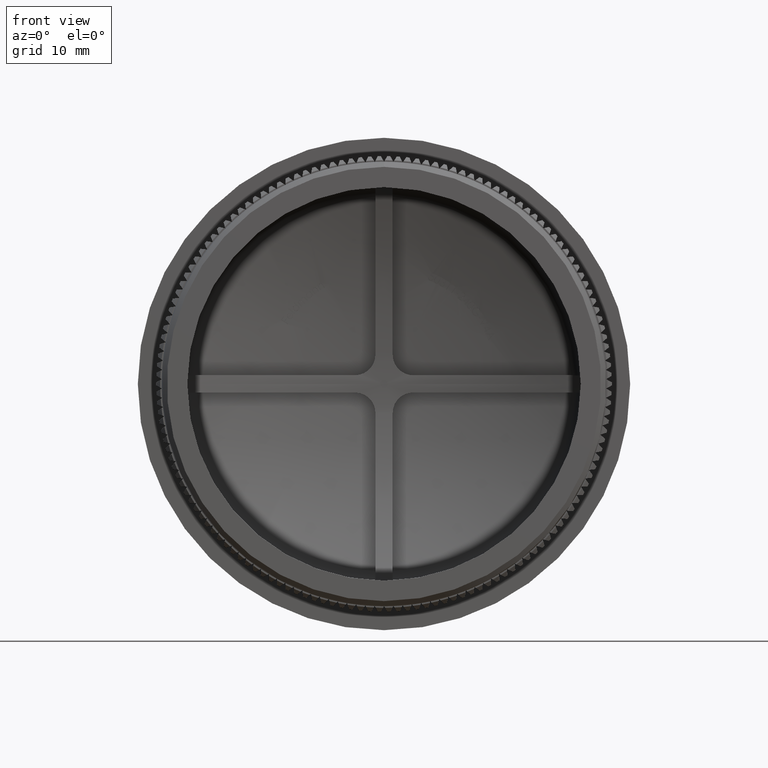
[diagram: clean part render]
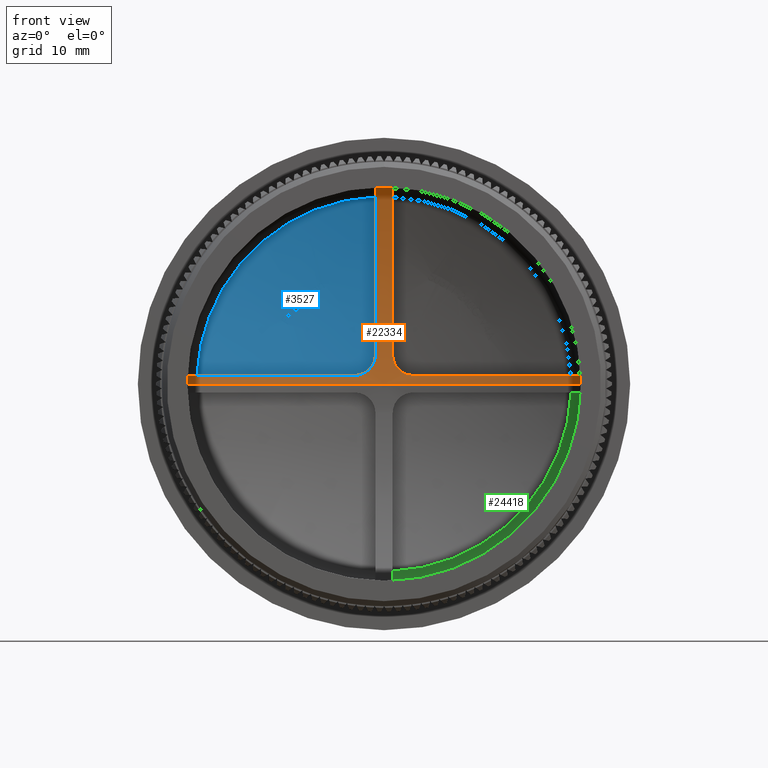
[diagram: same view with three faces highlighted in distinct colors, each labeled with its STEP entity id]
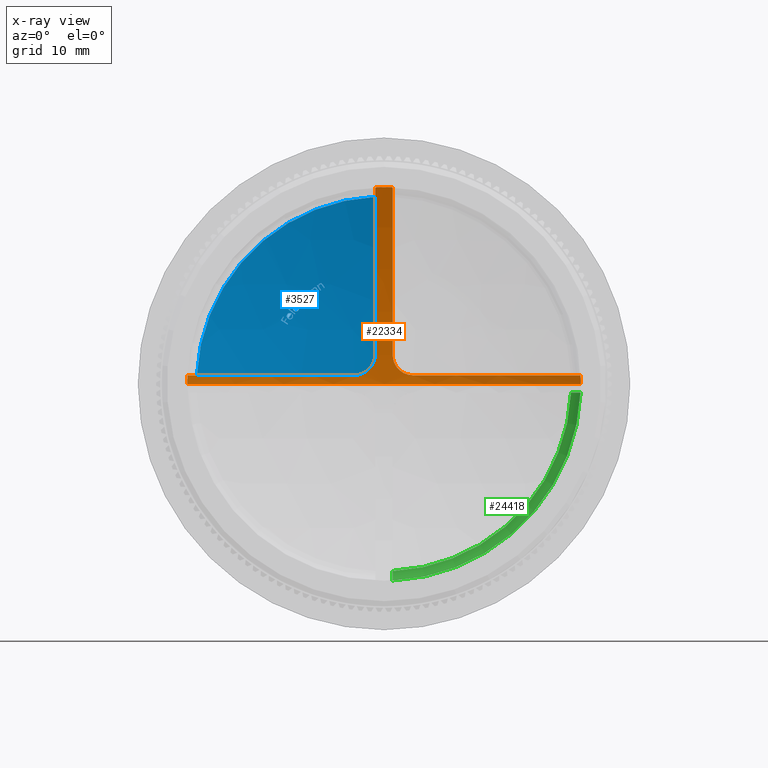
[diagram: x-ray of the same camera — body ghosted, the three highlighted faces saturated]
A machine part, front view with three faces highlighted in distinct colors.
The next image is the same camera in x-ray (body ghosted, the three faces saturated) — at least one of them is partly hidden behind the body in this view.
Their STEP definitions:

[orange] entity #22334 — the highlighted spherical surface has radius 46.0764 mm.
#1085 = CARTESIAN_POINT ( 'NONE',  ( -0.8499999999999994200, 16.87391791365100600, 2.850000000000001400 ) ) ;
#1237 = AXIS2_PLACEMENT_3D ( 'NONE', #28361, #32351, #18254 ) ;
#1360 = EDGE_CURVE ( 'NONE', #20731, #2122, #19690, .T. ) ;
#2122 = VERTEX_POINT ( 'NONE', #25607 ) ;
#2197 = CARTESIAN_POINT ( 'NONE',  ( 2.206068287032268300, 16.90749834030023600, 0.9519693981760571900 ) ) ;
#2237 = DIRECTION ( 'NONE',  ( 0.0000000000000000000, 0.0000000000000000000, -1.000000000000000000 ) ) ;
#2320 = AXIS2_PLACEMENT_3D ( 'NONE', #9051, #5528, #25619 ) ;
#2332 = AXIS2_PLACEMENT_3D ( 'NONE', #41453, #38130, #7273 ) ;
#2352 = CARTESIAN_POINT ( 'NONE',  ( 2.333011335065104500, 16.90201252549741200, 0.9135944489061642600 ) ) ;
#2360 = ORIENTED_EDGE ( 'NONE', *, *, #1360, .T. ) ;
#2401 = ORIENTED_EDGE ( 'NONE', *, *, #15018, .F. ) ;
#3435 = B_SPLINE_CURVE_WITH_KNOTS ( 'NONE', 3,
 ( #40358, #33413, #40505, #2352, #2197, #40651, #44126, #30133, #43536, #19899, #30420, #26548, #5713, #6163 ),
 .UNSPECIFIED., .F., .F.,
 ( 4, 2, 2, 2, 2, 2, 4 ),
 ( 0.0000000000000000000, 0.0003908182569358285900, 0.0007816365138716571900, 0.001172454770807486100, 0.001563273027743314600, 0.002344909541614972100, 0.003126546055486627900 ),
 .UNSPECIFIED. ) ;
#3681 = AXIS2_PLACEMENT_3D ( 'NONE', #30158, #43856, #44299 ) ;
#3931 = CIRCLE ( 'NONE', #18829, 19.29999999999999700 ) ;
#4383 = CARTESIAN_POINT ( 'NONE',  ( 0.0000000000000000000, 12.73310967627991300, 0.0000000000000000000 ) ) ;
#4621 = CARTESIAN_POINT ( 'NONE',  ( -0.8499999999999996400, 16.88209284108035000, 2.718110281586929600 ) ) ;
#5255 = DIRECTION ( 'NONE',  ( -0.0000000000000000000, -1.000000000000000000, -0.0000000000000000000 ) ) ;
#5272 = EDGE_CURVE ( 'NONE', #24175, #16310, #30708, .T. ) ;
#5445 = CIRCLE ( 'NONE', #28983, 46.07639209225696700 ) ;
#5528 = DIRECTION ( 'NONE',  ( -0.0000000000000000000, -1.000000000000000000, -0.0000000000000000000 ) ) ;
#5700 = CARTESIAN_POINT ( 'NONE',  ( 19.29999999999999700, 12.73310967627991300, -2.363568322354391400E-015 ) ) ;
#5713 = CARTESIAN_POINT ( 'NONE',  ( 0.8499999999999994200, 16.89026799087477900, 2.586216975659839900 ) ) ;
#6163 = CARTESIAN_POINT ( 'NONE',  ( 0.8500000000000000900, 16.87391791365100600, 2.850000000000000100 ) ) ;
#6968 = ORIENTED_EDGE ( 'NONE', *, *, #7847, .T. ) ;
#7273 = DIRECTION ( 'NONE',  ( 1.000000000000000000, 0.0000000000000000000, 0.0000000000000000000 ) ) ;
#7847 = EDGE_CURVE ( 'NONE', #29631, #41978, #25721, .T. ) ;
#8053 = EDGE_CURVE ( 'NONE', #36820, #24840, #3435, .T. ) ;
#8203 = DIRECTION ( 'NONE',  ( -0.0000000000000000000, -1.000000000000000000, -0.0000000000000000000 ) ) ;
#9051 = CARTESIAN_POINT ( 'NONE',  ( 0.0000000000000000000, 12.73310967627991300, 0.0000000000000000000 ) ) ;
#11077 = EDGE_CURVE ( 'NONE', #25285, #24757, #3931, .T. ) ;
#11108 = ORIENTED_EDGE ( 'NONE', *, *, #11077, .T. ) ;
#11410 = EDGE_CURVE ( 'NONE', #42463, #24757, #39482, .T. ) ;
#11647 = DIRECTION ( 'NONE',  ( 0.0000000000000000000, 0.0000000000000000000, -1.000000000000000000 ) ) ;
#12116 = EDGE_CURVE ( 'NONE', #42463, #20731, #5445, .T. ) ;
#12334 = AXIS2_PLACEMENT_3D ( 'NONE', #27865, #28309, #41829 ) ;
#12560 = DIRECTION ( 'NONE',  ( -2.047505002457381900E-016, 0.0000000000000000000, -1.000000000000000000 ) ) ;
#13090 = ORIENTED_EDGE ( 'NONE', *, *, #12116, .T. ) ;
#13757 = CARTESIAN_POINT ( 'NONE',  ( -5.000044390327195400E-018, -29.10639209225696100, 0.8499999999999998700 ) ) ;
#15018 = EDGE_CURVE ( 'NONE', #29631, #24840, #43098, .T. ) ;
#15167 = ORIENTED_EDGE ( 'NONE', *, *, #25574, .F. ) ;
#15489 = CARTESIAN_POINT ( 'NONE',  ( -2.586216975659838500, 16.89026799087477900, 0.8500000000000016400 ) ) ;
#16135 = CARTESIAN_POINT ( 'NONE',  ( 2.849999999999999600, 16.87391791365100600, 0.8499999999999998700 ) ) ;
#16310 = VERTEX_POINT ( 'NONE', #36262 ) ;
#17271 = AXIS2_PLACEMENT_3D ( 'NONE', #40365, #39926, #12560 ) ;
#18254 = DIRECTION ( 'NONE',  ( -1.000000000000000000, 0.0000000000000000000, 0.0000000000000000000 ) ) ;
#18654 = CARTESIAN_POINT ( 'NONE',  ( -1.842828675561848200, 16.92066584029282700, 1.102596278799331800 ) ) ;
#18829 = AXIS2_PLACEMENT_3D ( 'NONE', #29569, #36366, #2237 ) ;
#18937 = CARTESIAN_POINT ( 'NONE',  ( -2.849999999999999200, 16.87391791365100600, 0.8499999999999998700 ) ) ;
#19617 = AXIS2_PLACEMENT_3D ( 'NONE', #4383, #8203, #28946 ) ;
#19690 = CIRCLE ( 'NONE', #2320, 19.29999999999999700 ) ;
#19899 = CARTESIAN_POINT ( 'NONE',  ( 1.251705999032469700, 16.92524607816654100, 1.619731823192323700 ) ) ;
#20041 = CARTESIAN_POINT ( 'NONE',  ( -2.821365304602045700E-015, 16.97000000000000600, 0.0000000000000000000 ) ) ;
#20731 = VERTEX_POINT ( 'NONE', #5700 ) ;
#20749 = B_SPLINE_CURVE_WITH_KNOTS ( 'NONE', 3,
 ( #1085, #4621, #22398, #42598, #35965, #43035, #43181, #36126, #29323, #39568, #18654, #32467, #15489, #18937 ),
 .UNSPECIFIED., .F., .F.,
 ( 4, 2, 2, 2, 2, 2, 4 ),
 ( 0.0000000000000000000, 0.0003908182569358286500, 0.0007816365138716573000, 0.001172454770807485800, 0.001563273027743314400, 0.002344909541614971200, 0.003126546055486627900 ),
 .UNSPECIFIED. ) ;
#20897 = CIRCLE ( 'NONE', #39478, 19.29999999999999700 ) ;
#21630 = ORIENTED_EDGE ( 'NONE', *, *, #34102, .T. ) ;
#22334 = ADVANCED_FACE ( 'NONE', ( #43747 ), #38921, .F. ) ;
#22398 = CARTESIAN_POINT ( 'NONE',  ( -0.8629186428152263400, 16.88933179402046000, 2.588367781213960900 ) ) ;
#22510 = DIRECTION ( 'NONE',  ( -1.000000000000000000, 0.0000000000000000000, 1.224646799147353200E-016 ) ) ;
#24119 = DIRECTION ( 'NONE',  ( 1.000000000000000000, 0.0000000000000000000, 4.706908051626165200E-018 ) ) ;
#24175 = VERTEX_POINT ( 'NONE', #44598 ) ;
#24440 = EDGE_LOOP ( 'NONE', ( #41519, #13090, #2360, #15167, #38115, #2401, #6968, #21630, #31682, #40759, #26160, #11108 ) ) ;
#24757 = VERTEX_POINT ( 'NONE', #33234 ) ;
#24788 = VERTEX_POINT ( 'NONE', #41080 ) ;
#24795 = CARTESIAN_POINT ( 'NONE',  ( -19.28127329820309700, 12.73310967627991300, 0.8499999999999997600 ) ) ;
#24840 = VERTEX_POINT ( 'NONE', #37479 ) ;
#25285 = VERTEX_POINT ( 'NONE', #24795 ) ;
#25574 = EDGE_CURVE ( 'NONE', #36820, #2122, #36323, .T. ) ;
#25607 = CARTESIAN_POINT ( 'NONE',  ( 19.28127329820309700, 12.73310967627991300, 0.8499999999999997600 ) ) ;
#25619 = DIRECTION ( 'NONE',  ( 0.0000000000000000000, 0.0000000000000000000, -1.000000000000000000 ) ) ;
#25721 = CIRCLE ( 'NONE', #19617, 19.29999999999999700 ) ;
#26160 = ORIENTED_EDGE ( 'NONE', *, *, #35529, .F. ) ;
#26548 = CARTESIAN_POINT ( 'NONE',  ( 0.9029516258031526900, 16.90323864854717000, 2.323866490162559600 ) ) ;
#27507 = CARTESIAN_POINT ( 'NONE',  ( 0.8500000000000035300, 12.73310967627991300, 19.28127329820309700 ) ) ;
#27865 = CARTESIAN_POINT ( 'NONE',  ( -0.8500000000000000900, -29.10639209225696100, 1.800015980517790900E-016 ) ) ;
#28309 = DIRECTION ( 'NONE',  ( 1.000000000000000000, -0.0000000000000000000, -2.117665859432695400E-016 ) ) ;
#28361 = CARTESIAN_POINT ( 'NONE',  ( 0.0000000000000000000, -29.10639209225696100, 0.0000000000000000000 ) ) ;
#28946 = DIRECTION ( 'NONE',  ( 0.0000000000000000000, 0.0000000000000000000, -1.000000000000000000 ) ) ;
#28983 = AXIS2_PLACEMENT_3D ( 'NONE', #39381, #39681, #22510 ) ;
#29323 = CARTESIAN_POINT ( 'NONE',  ( -1.343036529158984500, 16.92523351802993000, 1.528604157472327900 ) ) ;
#29569 = CARTESIAN_POINT ( 'NONE',  ( 0.0000000000000000000, 12.73310967627991300, 0.0000000000000000000 ) ) ;
#29631 = VERTEX_POINT ( 'NONE', #27507 ) ;
#30133 = CARTESIAN_POINT ( 'NONE',  ( 1.631592054119579400, 16.92408516943763500, 1.258596775633192800 ) ) ;
#30158 = CARTESIAN_POINT ( 'NONE',  ( 5.000044390327195400E-018, -29.10639209225696100, 0.8499999999999998700 ) ) ;
#30420 = CARTESIAN_POINT ( 'NONE',  ( 1.102596278799329500, 16.92066584029282700, 1.842828675561848200 ) ) ;
#30708 = CIRCLE ( 'NONE', #12334, 46.06855118450546600 ) ;
#31682 = ORIENTED_EDGE ( 'NONE', *, *, #5272, .F. ) ;
#32001 = AXIS2_PLACEMENT_3D ( 'NONE', #13757, #44594, #24119 ) ;
#32220 = CARTESIAN_POINT ( 'NONE',  ( 0.0000000000000000000, 12.73310967627991300, 0.0000000000000000000 ) ) ;
#32351 = DIRECTION ( 'NONE',  ( -0.0000000000000000000, -0.0000000000000000000, -1.000000000000000000 ) ) ;
#32467 = CARTESIAN_POINT ( 'NONE',  ( -2.323866490162558800, 16.90323864854717300, 0.9029516258031546900 ) ) ;
#33234 = CARTESIAN_POINT ( 'NONE',  ( -19.29999999999999700, 12.73310967627991300, 0.0000000000000000000 ) ) ;
#33413 = CARTESIAN_POINT ( 'NONE',  ( 2.718110281586929100, 16.88209284108035400, 0.8500000000000002000 ) ) ;
#34102 = EDGE_CURVE ( 'NONE', #41978, #16310, #20897, .T. ) ;
#35529 = EDGE_CURVE ( 'NONE', #25285, #24788, #37520, .T. ) ;
#35965 = CARTESIAN_POINT ( 'NONE',  ( -0.9519693981760570800, 16.90749834030023600, 2.206068287032270100 ) ) ;
#36126 = CARTESIAN_POINT ( 'NONE',  ( -1.258596775633192600, 16.92408516943763200, 1.631592054119581200 ) ) ;
#36262 = CARTESIAN_POINT ( 'NONE',  ( -0.8499999999999959800, 12.73310967627991300, 19.28127329820309700 ) ) ;
#36313 = CARTESIAN_POINT ( 'NONE',  ( 2.363568322354391400E-015, 12.73310967627991300, 19.29999999999999700 ) ) ;
#36323 = CIRCLE ( 'NONE', #3681, 46.06855118450546600 ) ;
#36366 = DIRECTION ( 'NONE',  ( -0.0000000000000000000, -1.000000000000000000, -0.0000000000000000000 ) ) ;
#36820 = VERTEX_POINT ( 'NONE', #16135 ) ;
#37479 = CARTESIAN_POINT ( 'NONE',  ( 0.8500000000000000900, 16.87391791365100600, 2.850000000000000100 ) ) ;
#37520 = CIRCLE ( 'NONE', #32001, 46.06855118450546600 ) ;
#38115 = ORIENTED_EDGE ( 'NONE', *, *, #8053, .T. ) ;
#38130 = DIRECTION ( 'NONE',  ( -0.0000000000000000000, 0.0000000000000000000, 1.000000000000000000 ) ) ;
#38882 = EDGE_CURVE ( 'NONE', #24175, #24788, #20749, .T. ) ;
#38921 = SPHERICAL_SURFACE ( 'NONE', #1237, 46.07639209225696700 ) ;
#39381 = CARTESIAN_POINT ( 'NONE',  ( 0.0000000000000000000, -29.10639209225696100, 0.0000000000000000000 ) ) ;
#39478 = AXIS2_PLACEMENT_3D ( 'NONE', #32220, #5255, #11647 ) ;
#39482 = CIRCLE ( 'NONE', #2332, 46.07639209225696700 ) ;
#39568 = CARTESIAN_POINT ( 'NONE',  ( -1.619731823192323200, 16.92524607816652300, 1.251705999032471000 ) ) ;
#39681 = DIRECTION ( 'NONE',  ( -1.224646799147353200E-016, 0.0000000000000000000, -1.000000000000000000 ) ) ;
#39926 = DIRECTION ( 'NONE',  ( -1.000000000000000000, -0.0000000000000000000, 2.058841807781787300E-016 ) ) ;
#40358 = CARTESIAN_POINT ( 'NONE',  ( 2.849999999999999600, 16.87391791365100600, 0.8499999999999998700 ) ) ;
#40365 = CARTESIAN_POINT ( 'NONE',  ( 0.8499999999999995300, -29.10639209225696100, -1.750015536614517900E-016 ) ) ;
#40505 = CARTESIAN_POINT ( 'NONE',  ( 2.588367781213959600, 16.88933179402046000, 0.8629186428152269000 ) ) ;
#40651 = CARTESIAN_POINT ( 'NONE',  ( 1.963940808817201000, 16.91628598247666200, 1.052204870919324600 ) ) ;
#40759 = ORIENTED_EDGE ( 'NONE', *, *, #38882, .T. ) ;
#41080 = CARTESIAN_POINT ( 'NONE',  ( -2.849999999999999200, 16.87391791365100600, 0.8499999999999998700 ) ) ;
#41453 = CARTESIAN_POINT ( 'NONE',  ( 0.0000000000000000000, -29.10639209225696100, 0.0000000000000000000 ) ) ;
#41519 = ORIENTED_EDGE ( 'NONE', *, *, #11410, .F. ) ;
#41829 = DIRECTION ( 'NONE',  ( 2.118108623231774200E-016, 0.0000000000000000000, 1.000000000000000000 ) ) ;
#41978 = VERTEX_POINT ( 'NONE', #36313 ) ;
#42463 = VERTEX_POINT ( 'NONE', #20041 ) ;
#42598 = CARTESIAN_POINT ( 'NONE',  ( -0.9135944489061639300, 16.90201252549741500, 2.333011335065106300 ) ) ;
#43035 = CARTESIAN_POINT ( 'NONE',  ( -1.052204870919324400, 16.91628598247666200, 1.963940808817203200 ) ) ;
#43098 = CIRCLE ( 'NONE', #17271, 46.06855118450546600 ) ;
#43181 = CARTESIAN_POINT ( 'NONE',  ( -1.113564122289353500, 16.91959982699221100, 1.849064144058736100 ) ) ;
#43536 = CARTESIAN_POINT ( 'NONE',  ( 1.528604157472325900, 16.92523351802992700, 1.343036529158983900 ) ) ;
#43747 = FACE_OUTER_BOUND ( 'NONE', #24440, .T. ) ;
#43856 = DIRECTION ( 'NONE',  ( -5.882405165090820600E-018, -0.0000000000000000000, -1.000000000000000000 ) ) ;
#44126 = CARTESIAN_POINT ( 'NONE',  ( 1.849064144058733900, 16.91959982699221100, 1.113564122289353300 ) ) ;
#44299 = DIRECTION ( 'NONE',  ( 1.000000000000000000, 3.539594854822876200E-015, -4.706908051626165200E-018 ) ) ;
#44594 = DIRECTION ( 'NONE',  ( 5.882405165090820600E-018, -0.0000000000000000000, -1.000000000000000000 ) ) ;
#44598 = CARTESIAN_POINT ( 'NONE',  ( -0.8499999999999994200, 16.87391791365100600, 2.850000000000001400 ) ) ;

[blue] entity #3527 — the highlighted spherical surface has radius 48.0764 mm.
#36 = DIRECTION ( 'NONE',  ( -0.8426899419658938600, 0.0000000000000000000, 0.5383991657771383100 ) ) ;
#87 = DIRECTION ( 'NONE',  ( 0.6437469635877231000, 0.0000000000000000000, -0.7652384248530562600 ) ) ;
#91 = EDGE_CURVE ( 'NONE', #4843, #2072, #295, .T. ) ;
#92 = CARTESIAN_POINT ( 'NONE',  ( -9.009022200355502700, 17.63535314991477800, 6.737095366070790600 ) ) ;
#123 = CARTESIAN_POINT ( 'NONE',  ( -9.532201837449903800, 17.55318786082422400, 6.584846493318493400 ) ) ;
#195 = CARTESIAN_POINT ( 'NONE',  ( -8.102966272401221900, 17.67231535953692800, 7.578518544955829700 ) ) ;
#259 = VERTEX_POINT ( 'NONE', #16823 ) ;
#295 = CIRCLE ( 'NONE', #31818, 47.00549760660356900 ) ;
#313 = B_SPLINE_CURVE_WITH_KNOTS ( 'NONE', 3,
 ( #8400, #22214, #35633, #25712, #8684, #25414, #1639, #36229, #22520, #18610 ),
 .UNSPECIFIED., .F., .F.,
 ( 4, 2, 2, 2, 4 ),
 ( 0.0000000000000000000, 0.0001010021080446823100, 0.0002020042160893646200, 0.0003030063241340469500, 0.0004040084321787292400 ),
 .UNSPECIFIED. ) ;
#351 = CIRCLE ( 'NONE', #38899, 46.77912401506512900 ) ;
#360 = CARTESIAN_POINT ( 'NONE',  ( -7.635175092653232000, 17.53578971999579000, 8.806366529058770700 ) ) ;
#421 = CARTESIAN_POINT ( 'NONE',  ( -6.739628380321429200, 17.54276092882732000, 9.474950542641517300 ) ) ;
#481 = VERTEX_POINT ( 'NONE', #22266 ) ;
#491 = ORIENTED_EDGE ( 'NONE', *, *, #3398, .T. ) ;
#562 = ORIENTED_EDGE ( 'NONE', *, *, #13123, .T. ) ;
#586 = VERTEX_POINT ( 'NONE', #9044 ) ;
#625 = VERTEX_POINT ( 'NONE', #40027 ) ;
#631 = DIRECTION ( 'NONE',  ( -0.8048693449660777600, 0.0000000000000000000, -0.5934520515878910500 ) ) ;
#654 = EDGE_CURVE ( 'NONE', #17439, #14690, #31872, .T. ) ;
#656 = CARTESIAN_POINT ( 'NONE',  ( -7.650596820360905600, 17.55574490608814700, 8.686453657210952500 ) ) ;
#682 = VERTEX_POINT ( 'NONE', #37476 ) ;
#708 = VERTEX_POINT ( 'NONE', #2620 ) ;
#721 = CARTESIAN_POINT ( 'NONE',  ( -8.339914095454785700, 17.56202924988930300, 7.990294256561827300 ) ) ;
#777 = DIRECTION ( 'NONE',  ( 0.7858007559967308300, 0.0000000000000000000, -0.6184797263249349800 ) ) ;
#807 = CARTESIAN_POINT ( 'NONE',  ( -7.541736610534593800, 17.52616276535238500, 8.936806642073280600 ) ) ;
#810 = DIRECTION ( 'NONE',  ( 1.000000000000000000, -0.0000000000000000000, -2.117665859432695400E-016 ) ) ;
#829 = CARTESIAN_POINT ( 'NONE',  ( -8.047934620010522600, 17.59612348878186700, 8.089865411032121800 ) ) ;
#844 = CARTESIAN_POINT ( 'NONE',  ( -6.788887281714356600, 17.67199447651990200, 8.776846592408967100 ) ) ;
#866 = ORIENTED_EDGE ( 'NONE', *, *, #41236, .T. ) ;
#915 = EDGE_CURVE ( 'NONE', #23239, #5248, #24054, .T. ) ;
#978 = CARTESIAN_POINT ( 'NONE',  ( -8.121621739849983300, 17.57175864378318800, 8.156572836086988700 ) ) ;
#1039 = DIRECTION ( 'NONE',  ( 1.000000000000000000, -3.536652190841993000E-015, 6.766553936559935400E-018 ) ) ;
#1060 = CARTESIAN_POINT ( 'NONE',  ( 0.2117247302576214200, -29.10639209225691100, 0.1370296276808591900 ) ) ;
#1161 = EDGE_CURVE ( 'NONE', #12628, #17428, #12759, .T. ) ;
#1216 = CARTESIAN_POINT ( 'NONE',  ( -8.745773910846883900, 17.67160606560991800, 6.831530110552156600 ) ) ;
#1247 = ORIENTED_EDGE ( 'NONE', *, *, #40444, .T. ) ;
#1248 = CARTESIAN_POINT ( 'NONE',  ( -8.377565063104087900, 17.53106939566625400, 8.130386158813619700 ) ) ;
#1291 = EDGE_CURVE ( 'NONE', #29292, #12628, #33704, .T. ) ;
#1356 = B_SPLINE_CURVE_WITH_KNOTS ( 'NONE', 3,
 ( #24493, #3352, #20581, #6562, #10360, #37744, #38180, #20718, #27530, #17294 ),
 .UNSPECIFIED., .F., .F.,
 ( 4, 2, 2, 2, 4 ),
 ( 5.553824967135426600E-018, 7.285530041758126700E-005, 0.0001457106008351550500, 0.0002185659012527288200, 0.0002914212016703026200 ),
 .UNSPECIFIED. ) ;
#1464 = CARTESIAN_POINT ( 'NONE',  ( 0.2271924656434167500, -29.10639209225691100, 0.1913665807350817500 ) ) ;
#1490 = DIRECTION ( 'NONE',  ( -0.6514970486967157600, 0.0000000000000000000, -0.7586511685481470700 ) ) ;
#1501 = AXIS2_PLACEMENT_3D ( 'NONE', #39157, #32337, #18527 ) ;
#1527 = CARTESIAN_POINT ( 'NONE',  ( -7.283990466704464600, 17.55630410245828800, 8.993094202169434200 ) ) ;
#1567 = EDGE_CURVE ( 'NONE', #30532, #259, #39075, .T. ) ;
#1612 = CARTESIAN_POINT ( 'NONE',  ( -6.562780186084330200, 17.52918300122395600, 9.663980988074669700 ) ) ;
#1616 = B_SPLINE_CURVE_WITH_KNOTS ( 'NONE', 3,
 ( #7723, #35239, #7406, #34955, #28489, #24574, #35390, #28191, #7559, #21401 ),
 .UNSPECIFIED., .F., .F.,
 ( 4, 2, 2, 2, 4 ),
 ( 0.0000000000000000000, 0.0001203534627602615900, 0.0002407069255205231900, 0.0003610603882807847600, 0.0004814138510410463700 ),
 .UNSPECIFIED. ) ;
#1639 = CARTESIAN_POINT ( 'NONE',  ( -8.014831464887999200, 17.58722946535116400, 8.173665513913904900 ) ) ;
#1725 = CARTESIAN_POINT ( 'NONE',  ( -7.505408437304445200, 17.52651864434112400, 8.965606858737558600 ) ) ;
#1772 = CARTESIAN_POINT ( 'NONE',  ( -6.359382831062000600, 17.52649955158539500, 9.811884322328602100 ) ) ;
#1859 = CARTESIAN_POINT ( 'NONE',  ( -6.915008996089251300, -29.10639209225691100, 9.409351526821275500 ) ) ;
#1877 = CARTESIAN_POINT ( 'NONE',  ( -7.530204178332921200, -29.10639209225691100, 8.926533429944109700 ) ) ;
#1881 = B_SPLINE_CURVE_WITH_KNOTS ( 'NONE', 3,
 ( #14196, #17951, #28481, #38859, #18234, #3735 ),
 .UNSPECIFIED., .F., .F.,
 ( 4, 2, 4 ),
 ( 1.734723475976807100E-018, 0.0001090370501088360900, 0.0002180741002176704400 ),
 .UNSPECIFIED. ) ;
#1883 = CARTESIAN_POINT ( 'NONE',  ( 0.3174034869123658600, -29.10639209225691100, 0.3140717498209124600 ) ) ;
#1899 = DIRECTION ( 'NONE',  ( -0.5438677499919263300, 0.0000000000000000000, 0.8391709423703370700 ) ) ;
#1911 = CARTESIAN_POINT ( 'NONE',  ( -9.893214451616072900, 17.47740720942226400, 6.588886631566270900 ) ) ;
#2007 = CARTESIAN_POINT ( 'NONE',  ( -6.110730656837534800, 17.57214993005773400, 9.752546442802234600 ) ) ;
#2041 = CARTESIAN_POINT ( 'NONE',  ( -6.901697809558080500, 17.60153482985689900, 9.059558851977300300 ) ) ;
#2072 = VERTEX_POINT ( 'NONE', #18526 ) ;
#2092 = CIRCLE ( 'NONE', #1501, 46.77867595089022500 ) ;
#2151 = CARTESIAN_POINT ( 'NONE',  ( -8.962330042578107800, 17.63350951638133800, 6.811586777773621600 ) ) ;
#2209 = B_SPLINE_CURVE_WITH_KNOTS ( 'NONE', 3,
 ( #24172, #21003, #31685, #38007, #92, #3795 ),
 .UNSPECIFIED., .F., .F.,
 ( 4, 2, 4 ),
 ( 0.0000000000000000000, 0.0001394090630642450800, 0.0002788181261284901500 ),
 .UNSPECIFIED. ) ;
#2288 = CARTESIAN_POINT ( 'NONE',  ( 0.1240688009700722900, -29.10639209225691100, 0.1943587300367673200 ) ) ;
#2307 = ORIENTED_EDGE ( 'NONE', *, *, #32712, .T. ) ;
#2314 = CIRCLE ( 'NONE', #41192, 46.57825920272731700 ) ;
#2355 = CARTESIAN_POINT ( 'NONE',  ( 0.1686568075786411300, -29.10639209225691100, 0.1420096819111118500 ) ) ;
#2397 = CARTESIAN_POINT ( 'NONE',  ( -9.361908117497982600, 17.60323697249070200, 6.473384403975545700 ) ) ;
#2455 = CARTESIAN_POINT ( 'NONE',  ( -9.043263285767210400, 17.66003356819092900, 6.516156589472339000 ) ) ;
#2476 = CARTESIAN_POINT ( 'NONE',  ( -6.878565767291281200, 17.54383901722284700, 9.369138008674994500 ) ) ;
#2517 = CARTESIAN_POINT ( 'NONE',  ( 0.1426947639644799100, -29.10639209225691100, 0.1658852746527044700 ) ) ;
#2578 = CARTESIAN_POINT ( 'NONE',  ( -7.040995227075263200, 17.65671672350526600, 8.658961633359959700 ) ) ;
#2584 = EDGE_CURVE ( 'NONE', #18892, #12941, #313, .T. ) ;
#2592 = ORIENTED_EDGE ( 'NONE', *, *, #40043, .T. ) ;
#2603 = DIRECTION ( 'NONE',  ( 0.7643572491337262700, 0.0000000000000000000, 0.6447929866993924500 ) ) ;
#2614 = CIRCLE ( 'NONE', #4924, 48.07431840984210000 ) ;
#2620 = CARTESIAN_POINT ( 'NONE',  ( -9.398869750093638200, 17.67215989956655200, 5.896422438857939600 ) ) ;
#2657 = VERTEX_POINT ( 'NONE', #22069 ) ;
#2668 = EDGE_CURVE ( 'NONE', #8342, #23061, #24010, .T. ) ;
#2701 = VERTEX_POINT ( 'NONE', #16063 ) ;
#2729 = ORIENTED_EDGE ( 'NONE', *, *, #20541, .T. ) ;
#2768 = CARTESIAN_POINT ( 'NONE',  ( -6.816555981955500200, 17.54583451730290700, 9.404520699442301200 ) ) ;
#2947 = CARTESIAN_POINT ( 'NONE',  ( 0.1429209978220255300, -29.10639209225691100, 0.1053421954180771600 ) ) ;
#2966 = CARTESIAN_POINT ( 'NONE',  ( -0.8499999999999994200, 18.87792280968185600, 2.850000000000001400 ) ) ;
#2994 = EDGE_CURVE ( 'NONE', #33850, #3573, #8382, .T. ) ;
#3081 = AXIS2_PLACEMENT_3D ( 'NONE', #28374, #4376, #42192 ) ;
#3090 = CARTESIAN_POINT ( 'NONE',  ( -7.819461414628787700, 17.67425650399821900, 7.859161323401342400 ) ) ;
#3093 = CARTESIAN_POINT ( 'NONE',  ( -6.652155758082566100, 17.58619059999031700, 9.321542602057723700 ) ) ;
#3121 = CARTESIAN_POINT ( 'NONE',  ( -2.206037492450464700, 18.91010294113501900, 0.9519798837480545300 ) ) ;
#3274 = CARTESIAN_POINT ( 'NONE',  ( -2.588345692943193800, 18.89269427489675800, 0.8629212269935294700 ) ) ;
#3278 = CARTESIAN_POINT ( 'NONE',  ( -8.699344623987908400, 17.67161132362660000, 6.890520745568183600 ) ) ;
#3288 = CARTESIAN_POINT ( 'NONE',  ( -8.390764249164043100, 17.53565683815093500, 8.090353731253905800 ) ) ;
#3303 = ORIENTED_EDGE ( 'NONE', *, *, #36317, .T. ) ;
#3352 = CARTESIAN_POINT ( 'NONE',  ( -7.776712317241508500, 17.59010308346265100, 8.384518603897149100 ) ) ;
#3362 = B_SPLINE_CURVE_WITH_KNOTS ( 'NONE', 3,
 ( #10823, #41804, #7184, #17597, #14138, #38194 ),
 .UNSPECIFIED., .F., .F.,
 ( 4, 2, 4 ),
 ( 1.734723475976807100E-018, 0.0001313749803859332100, 0.0002627499607718646800 ),
 .UNSPECIFIED. ) ;
#3398 = EDGE_CURVE ( 'NONE', #37080, #8255, #15894, .T. ) ;
#3445 = CARTESIAN_POINT ( 'NONE',  ( -7.480464018795451900, 17.67212511337488900, 8.194660622279544200 ) ) ;
#3449 = DIRECTION ( 'NONE',  ( -0.7036321176603224100, 0.0000000000000000000, 0.7105644537949038500 ) ) ;
#3498 = VERTEX_POINT ( 'NONE', #24875 ) ;
#3527 = ADVANCED_FACE ( 'NONE', ( #5078, #30944, #36367, #29335, #21285, #27214, #4520, #6700, #40663 ), #26138, .F. ) ;
#3573 = VERTEX_POINT ( 'NONE', #7089 ) ;
#3585 = DIRECTION ( 'NONE',  ( -0.7110285249032775000, 0.0000000000000000000, -0.7031631651145195900 ) ) ;
#3634 = VERTEX_POINT ( 'NONE', #16846 ) ;
#3640 = CARTESIAN_POINT ( 'NONE',  ( -6.292609193291862200, 17.52640731522000900, 9.855244414190618600 ) ) ;
#3648 = CARTESIAN_POINT ( 'NONE',  ( -8.266159492703323500, 17.67247527969281900, 7.399165577762891700 ) ) ;
#3655 = CARTESIAN_POINT ( 'NONE',  ( -6.268288706501106600, 17.54371991249755100, 9.788580295381990500 ) ) ;
#3707 = ORIENTED_EDGE ( 'NONE', *, *, #13189, .T. ) ;
#3735 = CARTESIAN_POINT ( 'NONE',  ( -9.053439567818493600, 17.60280872517362000, 6.901106258943492800 ) ) ;
#3738 = CARTESIAN_POINT ( 'NONE',  ( -7.600409790369108800, 17.59134593961589100, 8.537925141064128800 ) ) ;
#3749 = VERTEX_POINT ( 'NONE', #11941 ) ;
#3795 = CARTESIAN_POINT ( 'NONE',  ( -9.026885831840932200, 17.62575555739665100, 6.779467887549262900 ) ) ;
#3861 = DIRECTION ( 'NONE',  ( 0.6184797263249349800, -0.0000000000000000000, 0.7858007559967307200 ) ) ;
#3873 = CARTESIAN_POINT ( 'NONE',  ( -9.741339939869012800, -29.10639209225691100, 6.223794821784224500 ) ) ;
#3875 = EDGE_CURVE ( 'NONE', #40503, #21017, #2314, .T. ) ;
#3884 = B_SPLINE_CURVE_WITH_KNOTS ( 'NONE', 3,
 ( #44285, #1725, #23518, #20053, #40666, #27009 ),
 .UNSPECIFIED., .F., .F.,
 ( 4, 2, 4 ),
 ( 0.0000000000000000000, 0.0001377746630763856400, 0.0002755493261527712800 ),
 .UNSPECIFIED. ) ;
#3892 = CARTESIAN_POINT ( 'NONE',  ( -7.599172917664822600, 17.52800546613415700, 8.878437344499003500 ) ) ;
#3896 = CARTESIAN_POINT ( 'NONE',  ( -0.2545183151191588400, -29.10639209225691100, -0.2517028470315558800 ) ) ;
#3957 = CARTESIAN_POINT ( 'NONE',  ( -6.674966274260250500, 17.55749642724913800, 9.448126245529771000 ) ) ;
#3966 = CARTESIAN_POINT ( 'NONE',  ( -6.234091350036240300, 17.54544636081927300, 9.802182205465984000 ) ) ;
#4066 = CARTESIAN_POINT ( 'NONE',  ( -8.103007727893230000, 17.57786235255606400, 8.140134105805474400 ) ) ;
#4114 = CARTESIAN_POINT ( 'NONE',  ( -6.577943684156839100, 17.59119277821717000, 9.349169521538931000 ) ) ;
#4209 = DIRECTION ( 'NONE',  ( 0.7107624056434606000, -0.0000000000000000000, 0.7034321592903760600 ) ) ;
#4297 = CARTESIAN_POINT ( 'NONE',  ( -8.435266416570867100, 17.67629826699618400, 7.181037179481162300 ) ) ;
#4376 = DIRECTION ( 'NONE',  ( 0.7108276654075322800, -0.0000000000000000000, 0.7033662133563691700 ) ) ;
#4454 = CIRCLE ( 'NONE', #26975, 46.71017456280554800 ) ;
#4461 = CARTESIAN_POINT ( 'NONE',  ( -6.363893180943870600, 17.54778962931787900, 9.707200482014773300 ) ) ;
#4520 = FACE_BOUND ( 'NONE', #15903, .T. ) ;
#4554 = B_SPLINE_CURVE_WITH_KNOTS ( 'NONE', 3,
 ( #7266, #35107, #18398, #11642, #39171, #42620, #22137, #29076, #39311, #18680 ),
 .UNSPECIFIED., .F., .F.,
 ( 4, 3, 3, 4 ),
 ( 0.0000000000000000000, 8.173816431446873800E-005, 0.0001230427454975426000, 0.0001643704848568383300 ),
 .UNSPECIFIED. ) ;
#4578 = CARTESIAN_POINT ( 'NONE',  ( -0.05022413504639022100, -29.10639209225691100, -0.07858034526396909200 ) ) ;
#4610 = VERTEX_POINT ( 'NONE', #31208 ) ;
#4669 = AXIS2_PLACEMENT_3D ( 'NONE', #29531, #36487, #12096 ) ;
#4744 = CARTESIAN_POINT ( 'NONE',  ( -0.2182415341668508500, -29.10639209225691100, -0.1412151103432563400 ) ) ;
#4757 = CARTESIAN_POINT ( 'NONE',  ( -8.390764249164041300, 17.55542434748025500, 7.975552549362878300 ) ) ;
#4789 = ORIENTED_EDGE ( 'NONE', *, *, #654, .T. ) ;
#4843 = VERTEX_POINT ( 'NONE', #21427 ) ;
#4879 = CIRCLE ( 'NONE', #41712, 18.37325178702364100 ) ;
#4894 = CIRCLE ( 'NONE', #6960, 46.78058824596455900 ) ;
#4905 = DIRECTION ( 'NONE',  ( -0.7858035825585250000, 0.0000000000000000000, 0.6184761350595408000 ) ) ;
#4924 = AXIS2_PLACEMENT_3D ( 'NONE', #1883, #36784, #19444 ) ;
#4938 = CARTESIAN_POINT ( 'NONE',  ( -7.549458065769377100, 17.61067435259590800, 8.477177528270420500 ) ) ;
#5045 = CARTESIAN_POINT ( 'NONE',  ( -8.832215181805887400, 17.47243844782060800, 7.983983786897507400 ) ) ;
#5078 = FACE_BOUND ( 'NONE', #28779, .T. ) ;
#5222 = AXIS2_PLACEMENT_3D ( 'NONE', #4744, #38831, #14893 ) ;
#5242 = CARTESIAN_POINT ( 'NONE',  ( -9.299516263086451000, 17.54531692262100500, 6.962663332028168600 ) ) ;
#5248 = VERTEX_POINT ( 'NONE', #35064 ) ;
#5258 = CARTESIAN_POINT ( 'NONE',  ( -8.177790936943553700, 17.54349304753712200, 8.261549928466811500 ) ) ;
#5277 = CARTESIAN_POINT ( 'NONE',  ( -6.941213503669486000, 17.58230194181700100, 9.128246331992301100 ) ) ;
#5362 = CARTESIAN_POINT ( 'NONE',  ( -6.557217860640640200, 17.59963737541438200, 9.321436686559609400 ) ) ;
#5402 = CARTESIAN_POINT ( 'NONE',  ( -8.136581951766887100, 17.55317356606260400, 8.247560401283687200 ) ) ;
#5539 = DIRECTION ( 'NONE',  ( 0.5921885548157869200, 0.0000000000000000000, -0.8057994263743241100 ) ) ;
#5587 = ORIENTED_EDGE ( 'NONE', *, *, #915, .T. ) ;
#5649 = DIRECTION ( 'NONE',  ( -0.5380663809448430500, 0.0000000000000000000, -0.8429024674877392300 ) ) ;
#5852 = VERTEX_POINT ( 'NONE', #3648 ) ;
#5869 = DIRECTION ( 'NONE',  ( 0.6440903574064006400, 0.0000000000000000000, -0.7649494176062199300 ) ) ;
#5873 = CARTESIAN_POINT ( 'NONE',  ( -6.886769200221535500, 17.60804193726615500, 9.037351904059763200 ) ) ;
#5922 = CARTESIAN_POINT ( 'NONE',  ( -8.044611655013403300, 17.52715570451070100, 8.481504572600060900 ) ) ;
#5999 = CARTESIAN_POINT ( 'NONE',  ( -6.682393333947104900, 17.57514574913617600, 9.355172718464931600 ) ) ;
#6120 = CARTESIAN_POINT ( 'NONE',  ( -8.923912369322071200, 17.66901151500892600, 6.615569051171433100 ) ) ;
#6141 = EDGE_CURVE ( 'NONE', #26565, #586, #351, .T. ) ;
#6234 = CARTESIAN_POINT ( 'NONE',  ( -8.390764249164041300, 17.55542434748025500, 7.975552549362878300 ) ) ;
#6245 = CARTESIAN_POINT ( 'NONE',  ( -7.111765033849719600, 17.67623620577756000, 8.494119464652607500 ) ) ;
#6286 = CARTESIAN_POINT ( 'NONE',  ( -8.076771024635302600, 17.52761742450109500, 8.448463114151172300 ) ) ;
#6330 = CARTESIAN_POINT ( 'NONE',  ( -1.631580042795364400, 18.92599716736106100, 1.258606490369130300 ) ) ;
#6335 = DIRECTION ( 'NONE',  ( 0.6521270821659682600, -0.0000000000000000000, 0.7581096679938202900 ) ) ;
#6385 = CARTESIAN_POINT ( 'NONE',  ( -8.393621024757930400, 17.55172389811751500, 7.994196920077874900 ) ) ;
#6386 = CIRCLE ( 'NONE', #41470, 46.60410532141921200 ) ;
#6429 = CARTESIAN_POINT ( 'NONE',  ( -8.930072983850355000, 17.67198673578796100, 6.586153716541756100 ) ) ;
#6459 = DIRECTION ( 'NONE',  ( 0.8049697935892583500, -0.0000000000000000000, 0.5933157939991712300 ) ) ;
#6482 = DIRECTION ( 'NONE',  ( 0.7108102194119712000, -0.0000000000000000000, 0.7033838439852777600 ) ) ;
#6526 = CARTESIAN_POINT ( 'NONE',  ( -0.1426403220591819200, -29.10639209225691100, -0.1052308791040393900 ) ) ;
#6562 = CARTESIAN_POINT ( 'NONE',  ( -7.829562304236889100, 17.57279388193330800, 8.431584515675767800 ) ) ;
#6606 = EDGE_CURVE ( 'NONE', #24124, #14862, #13992, .T. ) ;
#6694 = DIRECTION ( 'NONE',  ( 0.7102895088521917800, 0.0000000000000000000, 0.7039096629642984700 ) ) ;
#6699 = CARTESIAN_POINT ( 'NONE',  ( -6.956679239254255800, 17.57190839858464000, 9.169646396525658700 ) ) ;
#6700 = FACE_BOUND ( 'NONE', #24044, .T. ) ;
#6709 = CARTESIAN_POINT ( 'NONE',  ( -9.035598124584799600, 17.67505222324146500, 6.418380666256100000 ) ) ;
#6710 = ORIENTED_EDGE ( 'NONE', *, *, #17462, .T. ) ;
#6711 = DIRECTION ( 'NONE',  ( -0.5386429908788154000, 0.0000000000000000000, -0.8425341111059684300 ) ) ;
#6912 = VERTEX_POINT ( 'NONE', #36441 ) ;
#6927 = CIRCLE ( 'NONE', #36258, 48.07605381980718600 ) ;
#6954 = DIRECTION ( 'NONE',  ( 0.0000000000000000000, 0.0000000000000000000, -1.000000000000000000 ) ) ;
#6960 = AXIS2_PLACEMENT_3D ( 'NONE', #40746, #34264, #37888 ) ;
#6999 = DIRECTION ( 'NONE',  ( 0.5849399849895874400, 0.0000000000000000000, 0.8110765771247381300 ) ) ;
#7010 = EDGE_CURVE ( 'NONE', #2072, #25766, #30815, .T. ) ;
#7031 = DIRECTION ( 'NONE',  ( -0.5387621239137880800, 0.0000000000000000000, -0.8424579359445219000 ) ) ;
#7046 = B_SPLINE_CURVE_WITH_KNOTS ( 'NONE', 3,
 ( #7631, #28544, #35013, #41631, #421, #3957, #28109, #31699, #4114, #31836 ),
 .UNSPECIFIED., .F., .F.,
 ( 4, 2, 2, 2, 4 ),
 ( 0.0000000000000000000, 0.0001063193457140252600, 0.0002126386914280505200, 0.0003189580371420758100, 0.0004252773828561010400 ),
 .UNSPECIFIED. ) ;
#7066 = DIRECTION ( 'NONE',  ( -0.7858007559967307200, 0.0000000000000000000, 0.6184797263249350900 ) ) ;
#7077 = ORIENTED_EDGE ( 'NONE', *, *, #8816, .T. ) ;
#7083 = DIRECTION ( 'NONE',  ( 0.8426899419658947500, 0.0000000000000000000, -0.5383991657771372000 ) ) ;
#7089 = CARTESIAN_POINT ( 'NONE',  ( -6.499496432077917200, 17.52952665788395200, 9.705004125093898500 ) ) ;
#7123 = CARTESIAN_POINT ( 'NONE',  ( -8.329706556856351100, 17.52755263245400000, 8.199430754491084300 ) ) ;
#7184 = CARTESIAN_POINT ( 'NONE',  ( -7.005749873547676600, 17.53996249942311500, 9.294000143921753200 ) ) ;
#7226 = DIRECTION ( 'NONE',  ( 0.5934496146696113300, 0.0000000000000000000, -0.8048711417664877700 ) ) ;
#7251 = CARTESIAN_POINT ( 'NONE',  ( -7.644874625901959300, 17.54170079646580800, 8.766553478890655200 ) ) ;
#7266 = CARTESIAN_POINT ( 'NONE',  ( -6.375472994577918900, 17.58206940397527500, 9.533120361071462800 ) ) ;
#7357 = CARTESIAN_POINT ( 'NONE',  ( -9.486249563812082300, 17.52606474690879400, 6.838458522565288100 ) ) ;
#7406 = CARTESIAN_POINT ( 'NONE',  ( -8.893001235546560000, 17.58211644794807100, 7.241466001921672600 ) ) ;
#7514 = CARTESIAN_POINT ( 'NONE',  ( -8.773396628944913900, 17.62055912351626600, 7.138672102221598000 ) ) ;
#7559 = CARTESIAN_POINT ( 'NONE',  ( -8.898556550144276000, 17.52694716739652100, 7.582117648056368800 ) ) ;
#7596 = ORIENTED_EDGE ( 'NONE', *, *, #13912, .T. ) ;
#7613 = CARTESIAN_POINT ( 'NONE',  ( -6.352819619172368700, -29.10639209225691100, 9.800086079188448100 ) ) ;
#7616 = CIRCLE ( 'NONE', #41119, 48.06887742197047700 ) ;
#7631 = CARTESIAN_POINT ( 'NONE',  ( -6.907663573781666100, 17.52649417766598100, 9.433852802344866000 ) ) ;
#7723 = CARTESIAN_POINT ( 'NONE',  ( -8.837939340459733700, 17.60120276007908700, 7.185463654685969800 ) ) ;
#7728 = CARTESIAN_POINT ( 'NONE',  ( -0.8500000000000000900, -29.10639209225691100, 1.800015980517790900E-016 ) ) ;
#7814 = CARTESIAN_POINT ( 'NONE',  ( -8.659070216811221200, 17.64670983577341400, 7.106974029835883200 ) ) ;
#7887 = CARTESIAN_POINT ( 'NONE',  ( -8.268926707237822500, 17.54609855924787700, 8.155374787945152800 ) ) ;
#8078 = CARTESIAN_POINT ( 'NONE',  ( -7.145974641383952000, 17.67653039889220100, 8.463609526688666000 ) ) ;
#8088 = DIRECTION ( 'NONE',  ( -0.7648338822623239600, 0.0000000000000000000, -0.6442275471784341100 ) ) ;
#8092 = ORIENTED_EDGE ( 'NONE', *, *, #38140, .T. ) ;
#8150 = CARTESIAN_POINT ( 'NONE',  ( -8.720532903251209300, -29.10639209225691100, 6.863600020887754600 ) ) ;
#8255 = VERTEX_POINT ( 'NONE', #10712 ) ;
#8283 = CARTESIAN_POINT ( 'NONE',  ( -6.298196852750995900, 17.54346589622009800, 9.770513940799029100 ) ) ;
#8324 = CARTESIAN_POINT ( 'NONE',  ( -9.425073932492134400, 17.52813655864699500, 6.908712395695983900 ) ) ;
#8342 = VERTEX_POINT ( 'NONE', #39127 ) ;
#8346 = CIRCLE ( 'NONE', #23191, 46.78060061156240600 ) ;
#8382 = CIRCLE ( 'NONE', #13796, 46.63624633624773000 ) ;
#8384 = CARTESIAN_POINT ( 'NONE',  ( -6.438490425219304000, 17.54740185476524100, 9.659749530058078900 ) ) ;
#8400 = CARTESIAN_POINT ( 'NONE',  ( -8.003906526808275900, 17.54550826013751700, 8.418856836221854300 ) ) ;
#8485 = AXIS2_PLACEMENT_3D ( 'NONE', #20436, #16848, #2603 ) ;
#8531 = ORIENTED_EDGE ( 'NONE', *, *, #32380, .T. ) ;
#8539 = CARTESIAN_POINT ( 'NONE',  ( -9.029551361003187900, -29.10639209225691100, 7.754190999279598100 ) ) ;
#8684 = CARTESIAN_POINT ( 'NONE',  ( -8.055681942270640100, 17.56432939437829400, 8.263798667304129700 ) ) ;
#8816 = EDGE_CURVE ( 'NONE', #586, #24767, #16526, .T. ) ;
#8836 = CIRCLE ( 'NONE', #16482, 48.07583913178331200 ) ;
#8972 = CARTESIAN_POINT ( 'NONE',  ( -6.442413849946508900, 17.55572071211446100, 9.616756679180438600 ) ) ;
#8983 = CARTESIAN_POINT ( 'NONE',  ( 0.1476738722519736800, -29.10639209225691100, 0.09554779674839733400 ) ) ;
#9007 = ORIENTED_EDGE ( 'NONE', *, *, #17343, .T. ) ;
#9009 = CARTESIAN_POINT ( 'NONE',  ( -8.983477628715927900, 17.67643627384569900, 6.481016615514006300 ) ) ;
#9044 = CARTESIAN_POINT ( 'NONE',  ( -6.438759577387434000, 17.67236633015044200, 9.034910745053197800 ) ) ;
#9081 = CARTESIAN_POINT ( 'NONE',  ( -6.894226221060728600, 17.60479102425885500, 9.048463008807994300 ) ) ;
#9118 = ORIENTED_EDGE ( 'NONE', *, *, #12719, .T. ) ;
#9197 = ORIENTED_EDGE ( 'NONE', *, *, #26113, .T. ) ;
#9216 = DIRECTION ( 'NONE',  ( -0.6184761350595406900, 0.0000000000000000000, -0.7858035825585250000 ) ) ;
#9336 = VERTEX_POINT ( 'NONE', #25637 ) ;
#9371 = VERTEX_POINT ( 'NONE', #36160 ) ;
#9375 = CARTESIAN_POINT ( 'NONE',  ( -0.09297064664462288700, -29.10639209225691100, -0.1454361312320335800 ) ) ;
#9413 = CARTESIAN_POINT ( 'NONE',  ( -9.254514301093825800, 17.63193943853129000, 6.420712259185343400 ) ) ;
#9482 = DIRECTION ( 'NONE',  ( -0.5430365287250010800, 0.0000000000000000000, 0.8397090737096397600 ) ) ;
#9502 = B_SPLINE_CURVE_WITH_KNOTS ( 'NONE', 3,
 ( #31710, #24645, #34567, #3966, #3655, #24342 ),
 .UNSPECIFIED., .F., .F.,
 ( 4, 2, 4 ),
 ( 2.453269466693398700E-018, 0.0001032812626186795600, 0.0002065625252373566800 ),
 .UNSPECIFIED. ) ;
#9606 = CARTESIAN_POINT ( 'NONE',  ( -8.983477628715927900, 17.67643627384569900, 6.481016615514006300 ) ) ;
#9647 = ORIENTED_EDGE ( 'NONE', *, *, #13586, .T. ) ;
#9693 = CARTESIAN_POINT ( 'NONE',  ( -8.872761305603965800, 17.52667884643310700, 7.613821527282124400 ) ) ;
#9856 = VERTEX_POINT ( 'NONE', #5362 ) ;
#9968 = CARTESIAN_POINT ( 'NONE',  ( -2.332980224333900000, 18.90484609671399600, 0.9136024225112094900 ) ) ;
#9985 = CARTESIAN_POINT ( 'NONE',  ( -8.804608868424004700, 17.52920384228906400, 7.677344743230652700 ) ) ;
#10043 = CARTESIAN_POINT ( 'NONE',  ( -9.264597418602212600, 17.63922241204187100, 6.352629160279457600 ) ) ;
#10151 = CARTESIAN_POINT ( 'NONE',  ( 0.03445936243244381000, -29.10639209225691100, 0.03412317353066401200 ) ) ;
#10215 = CARTESIAN_POINT ( 'NONE',  ( -6.855510128268846000, 17.62102430522519100, 8.993887608033968900 ) ) ;
#10248 = CARTESIAN_POINT ( 'NONE',  ( 0.1429902213533084400, -29.10639209225691100, 0.1662434855054244200 ) ) ;
#10326 = CIRCLE ( 'NONE', #17539, 46.77801596097258900 ) ;
#10360 = CARTESIAN_POINT ( 'NONE',  ( -7.848376892829971800, 17.56690652420892800, 8.446670942333785300 ) ) ;
#10367 = CARTESIAN_POINT ( 'NONE',  ( -7.766353942673660500, 17.67423182236907300, 7.911791782135318300 ) ) ;
#10485 = VERTEX_POINT ( 'NONE', #22096 ) ;
#10486 = CARTESIAN_POINT ( 'NONE',  ( -6.152832862540690500, 17.54238953314867200, 9.867855839524761300 ) ) ;
#10491 = CARTESIAN_POINT ( 'NONE',  ( -6.960938950252201000, 17.56236221458388500, 9.214892093369305900 ) ) ;
#10500 = CARTESIAN_POINT ( 'NONE',  ( -8.246410071539530800, 17.60582095760688400, 7.829839685029026200 ) ) ;
#10501 = CARTESIAN_POINT ( 'NONE',  ( -6.030115422462533700, 17.60525116101089400, 9.643628423972103300 ) ) ;
#10508 = DIRECTION ( 'NONE',  ( -0.8424579359445217900, 0.0000000000000000000, 0.5387621239137880800 ) ) ;
#10582 = CARTESIAN_POINT ( 'NONE',  ( 0.0000000000000000000, 15.32066155052988400, 0.0000000000000000000 ) ) ;
#10712 = CARTESIAN_POINT ( 'NONE',  ( -8.030301258378788300, 17.60220332522395700, 8.072227228850062300 ) ) ;
#10803 = VERTEX_POINT ( 'NONE', #10215 ) ;
#10823 = CARTESIAN_POINT ( 'NONE',  ( -7.012924491249616000, 17.55602950997432600, 9.207430526703843700 ) ) ;
#10962 = CARTESIAN_POINT ( 'NONE',  ( -8.579401319498428400, 17.66081450992543700, 7.110792951633635000 ) ) ;
#10997 = AXIS2_PLACEMENT_3D ( 'NONE', #9375, #26407, #15852 ) ;
#11025 = CARTESIAN_POINT ( 'NONE',  ( -7.646316358356417100, 17.56378437628788400, 8.646942708180811000 ) ) ;
#11097 = VERTEX_POINT ( 'NONE', #26137 ) ;
#11406 = CIRCLE ( 'NONE', #42235, 48.07589413509034400 ) ;
#11408 = CARTESIAN_POINT ( 'NONE',  ( -9.336316278635344200, 17.47185450885519500, 7.391861641000875100 ) ) ;
#11412 = CARTESIAN_POINT ( 'NONE',  ( -8.049858800446097400, 17.67292828314815600, 7.631149003689804600 ) ) ;
#11472 = DIRECTION ( 'NONE',  ( -0.5921885548157869200, 0.0000000000000000000, 0.8057994263743241100 ) ) ;
#11474 = EDGE_CURVE ( 'NONE', #17190, #23026, #4454, .T. ) ;
#11507 = VERTEX_POINT ( 'NONE', #17406 ) ;
#11542 = CIRCLE ( 'NONE', #11860, 48.07571916941131500 ) ;
#11559 = CARTESIAN_POINT ( 'NONE',  ( -9.675661592527669400, -29.10639209225691100, 6.181832570121780000 ) ) ;
#11632 = VERTEX_POINT ( 'NONE', #28240 ) ;
#11642 = CARTESIAN_POINT ( 'NONE',  ( -6.340169817281236900, 17.60134765044501400, 9.461964459058277700 ) ) ;
#11709 = B_SPLINE_CURVE_WITH_KNOTS ( 'NONE', 3,
 ( #21642, #4297, #32590, #28437, #10962, #7814, #39547, #7514, #42263, #31578 ),
 .UNSPECIFIED., .F., .F.,
 ( 4, 2, 2, 2, 4 ),
 ( 0.0000000000000000000, 0.0001208005575903577100, 0.0002416011151807154200, 0.0003624016727710731600, 0.0004832022303614308400 ),
 .UNSPECIFIED. ) ;
#11781 = CARTESIAN_POINT ( 'NONE',  ( -7.177879511134518600, 17.67625183929214600, 8.438211431783916100 ) ) ;
#11860 = AXIS2_PLACEMENT_3D ( 'NONE', #35606, #42530, #43115 ) ;
#11909 = CARTESIAN_POINT ( 'NONE',  ( -0.2496651017108959300, -29.10639209225691100, -0.2471887120636301300 ) ) ;
#11929 = CARTESIAN_POINT ( 'NONE',  ( -8.461839219115965700, 17.53024312169506500, 8.047422541350059100 ) ) ;
#11941 = CARTESIAN_POINT ( 'NONE',  ( -8.288206406615968200, 17.54580531157940000, 8.137419035741086000 ) ) ;
#12061 = CARTESIAN_POINT ( 'NONE',  ( -9.532093319742855900, 17.52816667860205200, 6.760074171365412900 ) ) ;
#12096 = DIRECTION ( 'NONE',  ( 0.6514970486967158700, 0.0000000000000000000, 0.7586511685481469600 ) ) ;
#12230 = CARTESIAN_POINT ( 'NONE',  ( -8.298728573382705400, 17.52797973873685300, 8.228471777996539100 ) ) ;
#12252 = B_SPLINE_CURVE_WITH_KNOTS ( 'NONE', 3,
 ( #8972, #8384, #15742, #42979, #1772, #39819 ),
 .UNSPECIFIED., .F., .F.,
 ( 4, 2, 4 ),
 ( 0.0000000000000000000, 0.0001316540917675118100, 0.0002633081835350236300 ),
 .UNSPECIFIED. ) ;
#12285 = DIRECTION ( 'NONE',  ( -0.6521475318151080900, 0.0000000000000000000, -0.7580920766948184800 ) ) ;
#12306 = ORIENTED_EDGE ( 'NONE', *, *, #38490, .T. ) ;
#12470 = DIRECTION ( 'NONE',  ( 0.4454485728392684800, 0.0000000000000000000, -0.8953075275878444900 ) ) ;
#12627 = CARTESIAN_POINT ( 'NONE',  ( -7.047221571609813200, 17.66418365743153600, 8.613445730115497400 ) ) ;
#12628 = VERTEX_POINT ( 'NONE', #35284 ) ;
#12681 = DIRECTION ( 'NONE',  ( -0.8057994263743241100, 0.0000000000000000000, -0.5921885548157869200 ) ) ;
#12705 = ORIENTED_EDGE ( 'NONE', *, *, #1291, .T. ) ;
#12719 = EDGE_CURVE ( 'NONE', #22252, #8342, #33454, .T. ) ;
#12759 = CIRCLE ( 'NONE', #37625, 46.63791644775485400 ) ;
#12823 = ORIENTED_EDGE ( 'NONE', *, *, #2994, .T. ) ;
#12824 = CARTESIAN_POINT ( 'NONE',  ( -6.666936862959475200, 17.58067988104850000, 9.338561989575156400 ) ) ;
#12878 = ORIENTED_EDGE ( 'NONE', *, *, #20744, .T. ) ;
#12885 = B_SPLINE_CURVE_WITH_KNOTS ( 'NONE', 3,
 ( #23275, #2578, #12627, #37157, #6245, #40582 ),
 .UNSPECIFIED., .F., .F.,
 ( 4, 2, 4 ),
 ( 0.0000000000000000000, 0.0001371794136473347000, 0.0002743588272946693900 ),
 .UNSPECIFIED. ) ;
#12912 = CARTESIAN_POINT ( 'NONE',  ( -8.396274233104584500, 17.54475771864284900, 8.031953494133009700 ) ) ;
#12924 = EDGE_CURVE ( 'NONE', #17428, #16377, #29147, .T. ) ;
#12941 = VERTEX_POINT ( 'NONE', #31481 ) ;
#12943 = CARTESIAN_POINT ( 'NONE',  ( -18.35357952088275700, 15.32066155052988800, 0.8499999999999996400 ) ) ;
#12964 = CARTESIAN_POINT ( 'NONE',  ( -8.111100827653043400, 17.55310668679125300, 8.273016261340306000 ) ) ;
#12980 = EDGE_CURVE ( 'NONE', #11632, #42994, #4879, .T. ) ;
#12990 = CARTESIAN_POINT ( 'NONE',  ( -9.357506849108602900, -29.10639209225691100, 7.364938005228345300 ) ) ;
#13026 = CARTESIAN_POINT ( 'NONE',  ( -8.628053523152042100, 17.55670271783303000, 7.710496206769303900 ) ) ;
#13054 = EDGE_CURVE ( 'NONE', #708, #17542, #2092, .T. ) ;
#13100 = CARTESIAN_POINT ( 'NONE',  ( -8.983477628715927900, 17.67643627384569900, 6.481016615514006300 ) ) ;
#13123 = EDGE_CURVE ( 'NONE', #24778, #11632, #7616, .T. ) ;
#13134 = EDGE_CURVE ( 'NONE', #3573, #42742, #37251, .T. ) ;
#13189 = EDGE_CURVE ( 'NONE', #37849, #19499, #13753, .T. ) ;
#13277 = VERTEX_POINT ( 'NONE', #33233 ) ;
#13344 = CARTESIAN_POINT ( 'NONE',  ( -7.705296250365966800, 17.59521236202153100, 8.421877919955829100 ) ) ;
#13379 = CARTESIAN_POINT ( 'NONE',  ( -8.326855513538598400, 17.54800865185074000, 8.085225791106182700 ) ) ;
#13586 = EDGE_CURVE ( 'NONE', #14157, #42743, #25751, .T. ) ;
#13753 = B_SPLINE_CURVE_WITH_KNOTS ( 'NONE', 3,
 ( #26216, #15657, #39439, #12061, #43197, #43345 ),
 .UNSPECIFIED., .F., .F.,
 ( 4, 2, 4 ),
 ( 0.0000000000000000000, 0.0001346732896541294100, 0.0002693465793082588100 ),
 .UNSPECIFIED. ) ;
#13795 = ORIENTED_EDGE ( 'NONE', *, *, #25711, .T. ) ;
#13796 = AXIS2_PLACEMENT_3D ( 'NONE', #7613, #32239, #42513 ) ;
#13895 = DIRECTION ( 'NONE',  ( -0.5383991657771370900, 0.0000000000000000000, -0.8426899419658945300 ) ) ;
#13898 = DIRECTION ( 'NONE',  ( 0.7033838439852776500, 0.0000000000000000000, -0.7108102194119710900 ) ) ;
#13912 = EDGE_CURVE ( 'NONE', #19151, #11507, #22695, .T. ) ;
#13923 = CIRCLE ( 'NONE', #20155, 46.68517961227406900 ) ;
#13992 = B_SPLINE_CURVE_WITH_KNOTS ( 'NONE', 3,
 ( #43052, #19107, #22417, #32794, #1248, #25614, #35685, #42903, #35832, #22123 ),
 .UNSPECIFIED., .F., .F.,
 ( 4, 3, 3, 4 ),
 ( 0.0000000000000000000, 3.178845588738263500E-005, 6.371536400590682000E-005, 0.0001273719480814550200 ),
 .UNSPECIFIED. ) ;
#14035 = EDGE_CURVE ( 'NONE', #37765, #27000, #10326, .T. ) ;
#14138 = CARTESIAN_POINT ( 'NONE',  ( -6.942106455108871400, 17.52686813197779600, 9.406784497277628900 ) ) ;
#14157 = VERTEX_POINT ( 'NONE', #26041 ) ;
#14180 = CARTESIAN_POINT ( 'NONE',  ( -6.442413849946508900, 17.55572071211446100, 9.616756679180438600 ) ) ;
#14196 = CARTESIAN_POINT ( 'NONE',  ( -9.253944125110159300, 17.55385990645132900, 6.965980057020416000 ) ) ;
#14225 = ORIENTED_EDGE ( 'NONE', *, *, #30894, .T. ) ;
#14347 = CARTESIAN_POINT ( 'NONE',  ( -9.532201837449903800, 17.55318786082422400, 6.584846493318493400 ) ) ;
#14403 = CARTESIAN_POINT ( 'NONE',  ( -6.063636312795587500, 17.56560094013860200, 9.813161364504631800 ) ) ;
#14505 = CARTESIAN_POINT ( 'NONE',  ( -6.587560273001220600, -29.10639209225691100, 8.925081660195406400 ) ) ;
#14520 = CARTESIAN_POINT ( 'NONE',  ( -8.030301258378788300, 17.60220332522395700, 8.072227228850062300 ) ) ;
#14560 = ORIENTED_EDGE ( 'NONE', *, *, #1567, .T. ) ;
#14634 = EDGE_CURVE ( 'NONE', #19643, #37784, #18416, .T. ) ;
#14681 = CIRCLE ( 'NONE', #15601, 46.66594208628674800 ) ;
#14690 = VERTEX_POINT ( 'NONE', #39822 ) ;
#14862 = VERTEX_POINT ( 'NONE', #7123 ) ;
#14884 = CARTESIAN_POINT ( 'NONE',  ( -8.342322603680889500, 17.64854081812903500, 7.464675393468020600 ) ) ;
#14893 = DIRECTION ( 'NONE',  ( 0.5432512781572741400, 0.0000000000000000000, -0.8395701571521513300 ) ) ;
#14912 = EDGE_LOOP ( 'NONE', ( #37277, #35350, #8531, #34308 ) ) ;
#15139 = EDGE_CURVE ( 'NONE', #33894, #24778, #39672, .T. ) ;
#15221 = CARTESIAN_POINT ( 'NONE',  ( -7.519393090963769800, 17.62041685848373300, 8.450157317232527300 ) ) ;
#15340 = CARTESIAN_POINT ( 'NONE',  ( 0.1202427086160604100, -29.10639209225691100, 0.1881069646152734300 ) ) ;
#15382 = CARTESIAN_POINT ( 'NONE',  ( -8.329706556856351100, 17.52755263245400000, 8.199430754491084300 ) ) ;
#15421 = ORIENTED_EDGE ( 'NONE', *, *, #25318, .T. ) ;
#15540 = AXIS2_PLACEMENT_3D ( 'NONE', #11909, #25915, #43198 ) ;
#15601 = AXIS2_PLACEMENT_3D ( 'NONE', #3873, #7083, #13895 ) ;
#15657 = CARTESIAN_POINT ( 'NONE',  ( -9.543197290771523500, 17.54489434267301500, 6.627696572390055600 ) ) ;
#15715 = ORIENTED_EDGE ( 'NONE', *, *, #20625, .T. ) ;
#15729 = DIRECTION ( 'NONE',  ( -0.7580920766948184800, 0.0000000000000000000, 0.6521475318151079800 ) ) ;
#15742 = CARTESIAN_POINT ( 'NONE',  ( -6.430077030771576200, 17.53959370909948100, 9.702963078190448300 ) ) ;
#15848 = VERTEX_POINT ( 'NONE', #32421 ) ;
#15852 = DIRECTION ( 'NONE',  ( 0.8425566142897006300, 0.0000000000000000000, -0.5386077902487825800 ) ) ;
#15894 = CIRCLE ( 'NONE', #41722, 48.07638264083741600 ) ;
#15897 = ORIENTED_EDGE ( 'NONE', *, *, #6606, .T. ) ;
#15898 = CARTESIAN_POINT ( 'NONE',  ( -8.334490133746697900, 17.66428526138314900, 7.374384147323656400 ) ) ;
#15903 = EDGE_LOOP ( 'NONE', ( #38655, #42072, #30198, #9197, #866, #19806, #24617, #35340, #36697 ) ) ;
#16008 = CARTESIAN_POINT ( 'NONE',  ( -6.930525193819176100, 17.58861850602068700, 9.104066189962773900 ) ) ;
#16029 = ORIENTED_EDGE ( 'NONE', *, *, #38892, .T. ) ;
#16063 = CARTESIAN_POINT ( 'NONE',  ( -9.619726871487866800, 17.55900332528272800, 6.414140788216911900 ) ) ;
#16161 = DIRECTION ( 'NONE',  ( 0.6447929866994061000, 0.0000000000000000000, -0.7643572491337147200 ) ) ;
#16285 = CARTESIAN_POINT ( 'NONE',  ( -6.747699714248137900, 17.55647546980820200, 9.401384585400251100 ) ) ;
#16341 = ORIENTED_EDGE ( 'NONE', *, *, #42161, .T. ) ;
#16377 = VERTEX_POINT ( 'NONE', #4757 ) ;
#16482 = AXIS2_PLACEMENT_3D ( 'NONE', #2288, #5649, #43017 ) ;
#16526 = CIRCLE ( 'NONE', #26306, 48.07606424426473500 ) ;
#16573 = ORIENTED_EDGE ( 'NONE', *, *, #28848, .T. ) ;
#16723 = CARTESIAN_POINT ( 'NONE',  ( -8.116281201272160600, 17.54409039194281300, 8.318654238428735000 ) ) ;
#16823 = CARTESIAN_POINT ( 'NONE',  ( -6.878565767291281200, 17.54383901722284700, 9.369138008674994500 ) ) ;
#16832 = ORIENTED_EDGE ( 'NONE', *, *, #40439, .T. ) ;
#16839 = CARTESIAN_POINT ( 'NONE',  ( -9.223704531608804700, 17.64761515228806100, 6.350372490452469000 ) ) ;
#16846 = CARTESIAN_POINT ( 'NONE',  ( -6.941213503669486000, 17.58230194181700100, 9.128246331992301100 ) ) ;
#16848 = DIRECTION ( 'NONE',  ( -0.6447929866993924500, 0.0000000000000000000, 0.7643572491337261600 ) ) ;
#16860 = CARTESIAN_POINT ( 'NONE',  ( -0.1573316777002814200, -29.10639209225691100, -0.1017457721867900400 ) ) ;
#16885 = CARTESIAN_POINT ( 'NONE',  ( -6.604124160720769700, 17.60539458409687100, 9.259265963402560500 ) ) ;
#16899 = DIRECTION ( 'NONE',  ( 0.8048711417664880000, -0.0000000000000000000, 0.5934496146696114400 ) ) ;
#16964 = DIRECTION ( 'NONE',  ( -0.5936650671117345000, 0.0000000000000000000, 0.8047122393074556100 ) ) ;
#16970 = CARTESIAN_POINT ( 'NONE',  ( -8.396430880829894900, 17.54306057782003600, 8.041647065388403300 ) ) ;
#16989 = CARTESIAN_POINT ( 'NONE',  ( -10.01303618804522000, -29.10639209225691100, 6.401463975181577800 ) ) ;
#17089 = CARTESIAN_POINT ( 'NONE',  ( -9.053439567818493600, 17.60280872517362000, 6.901106258943492800 ) ) ;
#17102 = VERTEX_POINT ( 'NONE', #24288 ) ;
#17106 = CARTESIAN_POINT ( 'NONE',  ( -7.894627579473480600, 17.54197557633336400, 8.540799135266389900 ) ) ;
#17114 = CARTESIAN_POINT ( 'NONE',  ( -9.312674052839272000, 17.61766455955529400, 6.440483152140395800 ) ) ;
#17144 = CARTESIAN_POINT ( 'NONE',  ( -9.377754715149841000, 17.61149954969125300, 6.390422094288579700 ) ) ;
#17157 = EDGE_CURVE ( 'NONE', #12941, #41356, #18692, .T. ) ;
#17161 = CARTESIAN_POINT ( 'NONE',  ( -9.410881474869777100, 17.60173027962864400, 6.412962729296057600 ) ) ;
#17163 = AXIS2_PLACEMENT_3D ( 'NONE', #1060, #25416, #28870 ) ;
#17177 = ORIENTED_EDGE ( 'NONE', *, *, #13054, .T. ) ;
#17190 = VERTEX_POINT ( 'NONE', #17089 ) ;
#17249 = CARTESIAN_POINT ( 'NONE',  ( -8.020030026392014100, 17.52731751295852200, 8.503930305262668900 ) ) ;
#17292 = CARTESIAN_POINT ( 'NONE',  ( -9.361908117497982600, 17.60323697249070200, 6.473384403975545700 ) ) ;
#17294 = CARTESIAN_POINT ( 'NONE',  ( -8.003906526808275900, 17.54550826013751700, 8.418856836221854300 ) ) ;
#17299 = CARTESIAN_POINT ( 'NONE',  ( -0.05186509508731303200, -29.10639209225691100, -0.08110102588023795900 ) ) ;
#17343 = EDGE_CURVE ( 'NONE', #13277, #9371, #4554, .T. ) ;
#17406 = CARTESIAN_POINT ( 'NONE',  ( -7.012924491249616000, 17.55602950997432600, 9.207430526703843700 ) ) ;
#17419 = CARTESIAN_POINT ( 'NONE',  ( -6.188607620594477300, 17.53628011914109700, 9.874360518964895300 ) ) ;
#17428 = VERTEX_POINT ( 'NONE', #11929 ) ;
#17439 = VERTEX_POINT ( 'NONE', #22870 ) ;
#17460 = CARTESIAN_POINT ( 'NONE',  ( -6.604124160720769700, 17.60539458409687100, 9.259265963402560500 ) ) ;
#17462 = EDGE_CURVE ( 'NONE', #28510, #19151, #36515, .T. ) ;
#17500 = CARTESIAN_POINT ( 'NONE',  ( -6.728306602627819500, 17.67237271124241700, 8.821367826383328400 ) ) ;
#17539 = AXIS2_PLACEMENT_3D ( 'NONE', #8150, #4905, #28889 ) ;
#17542 = VERTEX_POINT ( 'NONE', #33092 ) ;
#17581 = CARTESIAN_POINT ( 'NONE',  ( -8.322497444867222400, 17.57549584203103500, 7.929558320919150000 ) ) ;
#17597 = CARTESIAN_POINT ( 'NONE',  ( -6.971081263814356000, 17.52934235086418700, 9.373028625938514900 ) ) ;
#17612 = EDGE_CURVE ( 'NONE', #24767, #30532, #33272, .T. ) ;
#17785 = CARTESIAN_POINT ( 'NONE',  ( -0.02527252230061437600, -29.10639209225691100, -0.03210964932961030100 ) ) ;
#17803 = CARTESIAN_POINT ( 'NONE',  ( -8.407991423793069100, 17.67654741325129600, 7.211222368628277500 ) ) ;
#17884 = CARTESIAN_POINT ( 'NONE',  ( -6.323319549065099700, 17.52609631000028800, 9.836977782946466000 ) ) ;
#17951 = CARTESIAN_POINT ( 'NONE',  ( -9.217808704438574800, 17.56091685581216000, 6.966714501889877700 ) ) ;
#17977 = EDGE_LOOP ( 'NONE', ( #41991, #22754, #9647, #2592, #1247, #12878, #28777, #3303, #30647 ) ) ;
#18018 = CARTESIAN_POINT ( 'NONE',  ( -8.341119208673198700, 17.55617713084005500, 8.023145983633563500 ) ) ;
#18192 = ORIENTED_EDGE ( 'NONE', *, *, #91, .T. ) ;
#18228 = CIRCLE ( 'NONE', #3081, 48.07497121010445100 ) ;
#18234 = CARTESIAN_POINT ( 'NONE',  ( -9.083087792129171900, 17.59408600240574900, 6.921249841310316100 ) ) ;
#18398 = CARTESIAN_POINT ( 'NONE',  ( -6.353499925892781300, 17.59490476480306100, 9.484836820755752700 ) ) ;
#18416 = B_SPLINE_CURVE_WITH_KNOTS ( 'NONE', 3,
 ( #36985, #23246, #15898, #29720, #33463, #32872 ),
 .UNSPECIFIED., .F., .F.,
 ( 4, 2, 4 ),
 ( 8.673617379884035500E-019, 0.0001368420341927687900, 0.0002736840683855367100 ),
 .UNSPECIFIED. ) ;
#18526 = CARTESIAN_POINT ( 'NONE',  ( -8.962330042578107800, 17.63350951638133800, 6.811586777773621600 ) ) ;
#18527 = DIRECTION ( 'NONE',  ( 0.5396292462748525400, 0.0000000000000000000, 0.8419027714438494000 ) ) ;
#18590 = DIRECTION ( 'NONE',  ( 0.5383991657771383100, 0.0000000000000000000, 0.8426899419658937500 ) ) ;
#18606 = CIRCLE ( 'NONE', #29282, 46.58433043288025700 ) ;
#18610 = CARTESIAN_POINT ( 'NONE',  ( -7.927743415830712500, 17.61927996715986200, 8.074771299362881300 ) ) ;
#18680 = CARTESIAN_POINT ( 'NONE',  ( -6.297878843936893600, 17.62088135880274800, 9.393514491680438300 ) ) ;
#18681 = DIRECTION ( 'NONE',  ( -0.7039096629643043500, 0.0000000000000000000, 0.7102895088521860000 ) ) ;
#18692 = CIRCLE ( 'NONE', #31776, 48.07636763285879100 ) ;
#18758 = EDGE_CURVE ( 'NONE', #10485, #33850, #22351, .T. ) ;
#18810 = CARTESIAN_POINT ( 'NONE',  ( -6.088133355926820500, 17.58043533323807500, 9.726985853332138300 ) ) ;
#18830 = CARTESIAN_POINT ( 'NONE',  ( -7.213119949747516000, 17.67462772613616200, 8.417138382030053400 ) ) ;
#18892 = VERTEX_POINT ( 'NONE', #43310 ) ;
#18975 = CIRCLE ( 'NONE', #26305, 46.63638603671098100 ) ;
#19092 = CARTESIAN_POINT ( 'NONE',  ( -9.061816599666309800, 17.65983822040119500, 6.491809908672427000 ) ) ;
#19107 = CARTESIAN_POINT ( 'NONE',  ( -8.387893100153135600, 17.53441725276717400, 8.100477879012858700 ) ) ;
#19141 = AXIS2_PLACEMENT_3D ( 'NONE', #4578, #31862, #28573 ) ;
#19151 = VERTEX_POINT ( 'NONE', #38729 ) ;
#19309 = CARTESIAN_POINT ( 'NONE',  ( -9.164784530950360200, 17.64825382006004500, 6.430413778132972000 ) ) ;
#19444 = DIRECTION ( 'NONE',  ( -0.7033662133563678400, 0.0000000000000000000, 0.7108276654075336200 ) ) ;
#19499 = VERTEX_POINT ( 'NONE', #7357 ) ;
#19548 = EDGE_LOOP ( 'NONE', ( #8092, #30374, #37925, #12823, #31579, #27611, #26524, #30175, #9118, #34367, #26312, #20504, #34402, #9007 ) ) ;
#19555 = CARTESIAN_POINT ( 'NONE',  ( -6.975521917024977400, 17.67242838557342600, 8.626907052730331300 ) ) ;
#19643 = VERTEX_POINT ( 'NONE', #14884 ) ;
#19667 = EDGE_CURVE ( 'NONE', #17102, #22252, #24015, .T. ) ;
#19728 = CARTESIAN_POINT ( 'NONE',  ( -6.674439062202722500, 17.57791193100856100, 9.347044108570946400 ) ) ;
#19806 = ORIENTED_EDGE ( 'NONE', *, *, #29633, .T. ) ;
#19872 = CARTESIAN_POINT ( 'NONE',  ( -6.717321002802932200, 17.56444233282038400, 9.383575442445694700 ) ) ;
#19935 = CARTESIAN_POINT ( 'NONE',  ( -2.849999999999999200, 18.87792280968185600, 0.8499999999999998700 ) ) ;
#19943 = EDGE_CURVE ( 'NONE', #16377, #24124, #24486, .T. ) ;
#20017 = AXIS2_PLACEMENT_3D ( 'NONE', #31086, #44329, #87 ) ;
#20044 = DIRECTION ( 'NONE',  ( 0.7649494176062200400, -0.0000000000000000000, 0.6440903574064008600 ) ) ;
#20053 = CARTESIAN_POINT ( 'NONE',  ( -7.374911101477553500, 17.53927792640251200, 9.007426518807362100 ) ) ;
#20119 = VERTEX_POINT ( 'NONE', #38915 ) ;
#20142 = CARTESIAN_POINT ( 'NONE',  ( -8.951155877849466000, 17.67568195676482600, 6.531057048991019800 ) ) ;
#20155 = AXIS2_PLACEMENT_3D ( 'NONE', #11559, #25689, #18590 ) ;
#20189 = CARTESIAN_POINT ( 'NONE',  ( -1.251714529657656600, 18.92710954476947900, 1.619723557056513200 ) ) ;
#20238 = DIRECTION ( 'NONE',  ( 0.7039096629642983500, 0.0000000000000000000, -0.7102895088521917800 ) ) ;
#20313 = CARTESIAN_POINT ( 'NONE',  ( -6.617512327196216400, 17.59992608042437500, 9.277304808377982300 ) ) ;
#20404 = CARTESIAN_POINT ( 'NONE',  ( -7.803876377643768500, -29.10639209225691100, 7.874606375024219700 ) ) ;
#20427 = ORIENTED_EDGE ( 'NONE', *, *, #41319, .T. ) ;
#20436 = CARTESIAN_POINT ( 'NONE',  ( -7.151919075860324600, -29.10639209225691100, 8.478102745556380900 ) ) ;
#20504 = ORIENTED_EDGE ( 'NONE', *, *, #42178, .T. ) ;
#20541 = EDGE_CURVE ( 'NONE', #8255, #3749, #29406, .T. ) ;
#20554 = B_SPLINE_CURVE_WITH_KNOTS ( 'NONE', 3,
 ( #31385, #3640, #35008, #17419, #10486, #28105, #14403, #27953, #41771, #21155 ),
 .UNSPECIFIED., .F., .F.,
 ( 4, 2, 2, 2, 4 ),
 ( 0.0000000000000000000, 0.0001062623038875139000, 0.0002125246077750278000, 0.0003187869116625417300, 0.0004250492155500556000 ),
 .UNSPECIFIED. ) ;
#20577 = CIRCLE ( 'NONE', #31759, 48.07587372133044600 ) ;
#20581 = CARTESIAN_POINT ( 'NONE',  ( -7.793715555342121300, 17.58432437320075100, 8.400896399706798700 ) ) ;
#20625 = EDGE_CURVE ( 'NONE', #33754, #29292, #8346, .T. ) ;
#20718 = CARTESIAN_POINT ( 'NONE',  ( -7.965153518489070300, 17.54649523063310900, 8.450118472818974900 ) ) ;
#20744 = EDGE_CURVE ( 'NONE', #5852, #19643, #35237, .T. ) ;
#20985 = VERTEX_POINT ( 'NONE', #35648 ) ;
#21003 = CARTESIAN_POINT ( 'NONE',  ( -9.016677246436930900, 17.65976707830023800, 6.554965867545923300 ) ) ;
#21011 = CIRCLE ( 'NONE', #20017, 48.07590862249082200 ) ;
#21017 = VERTEX_POINT ( 'NONE', #11408 ) ;
#21055 = B_SPLINE_CURVE_WITH_KNOTS ( 'NONE', 3,
 ( #17161, #37182, #33825, #37322, #37606, #123 ),
 .UNSPECIFIED., .F., .F.,
 ( 4, 2, 4 ),
 ( 1.939479807224432100E-018, 0.0001091324245193383400, 0.0002182648490386747600 ),
 .UNSPECIFIED. ) ;
#21086 = CARTESIAN_POINT ( 'NONE',  ( -8.224445639388402900, 17.61342329916199000, 7.807484891109675500 ) ) ;
#21155 = CARTESIAN_POINT ( 'NONE',  ( -5.979393016613175700, 17.59948920784885800, 9.702937067802231800 ) ) ;
#21157 = ORIENTED_EDGE ( 'NONE', *, *, #38421, .T. ) ;
#21167 = CARTESIAN_POINT ( 'NONE',  ( -8.267739205899715700, 17.59821046463669000, 7.852712817597225800 ) ) ;
#21215 = DIRECTION ( 'NONE',  ( -0.6184797263249349800, 0.0000000000000000000, -0.7858007559967307200 ) ) ;
#21285 = FACE_BOUND ( 'NONE', #29755, .T. ) ;
#21401 = CARTESIAN_POINT ( 'NONE',  ( -8.872761305603965800, 17.52667884643310700, 7.613821527282124400 ) ) ;
#21427 = CARTESIAN_POINT ( 'NONE',  ( -9.026885831840932200, 17.62575555739665100, 6.779467887549262900 ) ) ;
#21444 = CARTESIAN_POINT ( 'NONE',  ( -6.378655911522050000, 17.67201133948874400, 9.079272974620508300 ) ) ;
#21521 = ORIENTED_EDGE ( 'NONE', *, *, #32850, .T. ) ;
#21525 = CARTESIAN_POINT ( 'NONE',  ( -6.298196852750995900, 17.54346589622009800, 9.770513940799029100 ) ) ;
#21551 = CARTESIAN_POINT ( 'NONE',  ( -7.621232683599679100, 17.58182723630571700, 8.571355316763304100 ) ) ;
#21642 = CARTESIAN_POINT ( 'NONE',  ( -8.407991423793069100, 17.67654741325129600, 7.211222368628277500 ) ) ;
#21659 = CARTESIAN_POINT ( 'NONE',  ( -8.628053523152042100, 17.55670271783303000, 7.710496206769303900 ) ) ;
#21727 = EDGE_CURVE ( 'NONE', #21017, #37765, #40023, .T. ) ;
#21818 = CARTESIAN_POINT ( 'NONE',  ( -6.388528119276717400, 17.57162872325870100, 9.575522713015281800 ) ) ;
#21902 = VERTEX_POINT ( 'NONE', #21659 ) ;
#21956 = CARTESIAN_POINT ( 'NONE',  ( -6.336077991795771200, 17.54365569729260700, 9.745189063797832700 ) ) ;
#22053 = AXIS2_PLACEMENT_3D ( 'NONE', #23218, #1899, #29845 ) ;
#22069 = CARTESIAN_POINT ( 'NONE',  ( -6.181169609161250900, 17.67236836697749100, 9.213044489677232100 ) ) ;
#22096 = CARTESIAN_POINT ( 'NONE',  ( -6.244453363167663100, 17.67202497277461100, 9.172021352658003200 ) ) ;
#22118 = DIRECTION ( 'NONE',  ( -0.8396513269881826800, 0.0000000000000000000, -0.5431258133130700800 ) ) ;
#22123 = CARTESIAN_POINT ( 'NONE',  ( -8.329706556856351100, 17.52755263245400000, 8.199430754491084300 ) ) ;
#22137 = CARTESIAN_POINT ( 'NONE',  ( -6.319467912329066000, 17.61112445076713900, 9.427483755793062400 ) ) ;
#22177 = EDGE_CURVE ( 'NONE', #24282, #29005, #12885, .T. ) ;
#22183 = VERTEX_POINT ( 'NONE', #3445 ) ;
#22187 = CARTESIAN_POINT ( 'NONE',  ( -7.575763553643567700, 17.60097277167375300, 8.507017729813664900 ) ) ;
#22188 = DIRECTION ( 'NONE',  ( -0.6442275471784341100, 0.0000000000000000000, 0.7648338822623239600 ) ) ;
#22214 = CARTESIAN_POINT ( 'NONE',  ( -8.027146359077040200, 17.54600022853872700, 8.394036280406156800 ) ) ;
#22252 = VERTEX_POINT ( 'NONE', #24742 ) ;
#22266 = CARTESIAN_POINT ( 'NONE',  ( -6.907663573781666100, 17.52649417766598100, 9.433852802344866000 ) ) ;
#22279 = CARTESIAN_POINT ( 'NONE',  ( -7.575763553643567700, 17.60097277167375300, 8.507017729813664900 ) ) ;
#22337 = ORIENTED_EDGE ( 'NONE', *, *, #26174, .T. ) ;
#22351 = CIRCLE ( 'NONE', #5222, 48.07568934018313900 ) ;
#22417 = CARTESIAN_POINT ( 'NONE',  ( -8.385017192798741800, 17.53317055427196900, 8.110627084500729100 ) ) ;
#22477 = B_SPLINE_CURVE_WITH_KNOTS ( 'NONE', 3,
 ( #25624, #11781, #18830, #42618, #42912, #39017, #28926, #15221, #4938, #22279 ),
 .UNSPECIFIED., .F., .F.,
 ( 4, 2, 2, 2, 4 ),
 ( 0.0000000000000000000, 0.0001211160054836600300, 0.0002422320109673200600, 0.0003633480164509801100, 0.0004844640219346401300 ),
 .UNSPECIFIED. ) ;
#22489 = CARTESIAN_POINT ( 'NONE',  ( 0.1908754424778261200, -29.10639209225691100, 0.2218840883677255800 ) ) ;
#22520 = CARTESIAN_POINT ( 'NONE',  ( -7.950886301748788300, 17.61127730967620100, 8.098358182590201800 ) ) ;
#22559 = DIRECTION ( 'NONE',  ( -0.8425676805690164300, 0.0000000000000000000, 0.5385904786203965500 ) ) ;
#22574 = CARTESIAN_POINT ( 'NONE',  ( -6.095146312802791400, 17.57765666459190300, 9.735933271184753900 ) ) ;
#22695 = CIRCLE ( 'NONE', #33038, 48.07606532162370900 ) ;
#22749 = CARTESIAN_POINT ( 'NONE',  ( -6.871243905793431100, 17.61454015856340000, 9.015551182882369100 ) ) ;
#22754 = ORIENTED_EDGE ( 'NONE', *, *, #29163, .T. ) ;
#22755 = DIRECTION ( 'NONE',  ( -0.5439504398445448300, 0.0000000000000000000, 0.8391173451865516800 ) ) ;
#22765 = EDGE_CURVE ( 'NONE', #22775, #13277, #38242, .T. ) ;
#22775 = VERTEX_POINT ( 'NONE', #21525 ) ;
#22870 = CARTESIAN_POINT ( 'NONE',  ( -8.099150166631991600, 17.56280144408921400, 8.229800596237881300 ) ) ;
#22966 = EDGE_CURVE ( 'NONE', #25766, #20119, #41560, .T. ) ;
#23026 = VERTEX_POINT ( 'NONE', #17292 ) ;
#23039 = B_SPLINE_CURVE_WITH_KNOTS ( 'NONE', 3,
 ( #41035, #23878, #40883, #10491, #6699, #24182 ),
 .UNSPECIFIED., .F., .F.,
 ( 4, 2, 4 ),
 ( 0.0000000000000000000, 0.0001347866188835078800, 0.0002695732377670157700 ),
 .UNSPECIFIED. ) ;
#23061 = VERTEX_POINT ( 'NONE', #10501 ) ;
#23169 = CARTESIAN_POINT ( 'NONE',  ( -6.849805793060774300, 17.54412001233883700, 9.388853684432657300 ) ) ;
#23191 = AXIS2_PLACEMENT_3D ( 'NONE', #29207, #18681, #32807 ) ;
#23218 = CARTESIAN_POINT ( 'NONE',  ( -6.032965445041503100, -29.10639209225691100, 9.308677151528682400 ) ) ;
#23239 = VERTEX_POINT ( 'NONE', #34513 ) ;
#23246 = CARTESIAN_POINT ( 'NONE',  ( -8.335619123860603000, 17.65683465532942600, 7.420218643086562900 ) ) ;
#23263 = DIRECTION ( 'NONE',  ( 0.8395854179742784400, -0.0000000000000000000, 0.5432276925240064900 ) ) ;
#23275 = CARTESIAN_POINT ( 'NONE',  ( -7.040395715101899700, 17.64841800981149000, 8.704024190150201800 ) ) ;
#23349 = B_SPLINE_CURVE_WITH_KNOTS ( 'NONE', 3,
 ( #39447, #25921, #8324, #39749, #5242, #29201 ),
 .UNSPECIFIED., .F., .F.,
 ( 4, 2, 4 ),
 ( 0.0000000000000000000, 0.0001384847527227437000, 0.0002769695054454874000 ),
 .UNSPECIFIED. ) ;
#23356 = ORIENTED_EDGE ( 'NONE', *, *, #32322, .T. ) ;
#23510 = EDGE_CURVE ( 'NONE', #19499, #625, #23349, .T. ) ;
#23514 = CARTESIAN_POINT ( 'NONE',  ( -2.849999999999999200, 18.87792280968185600, 0.8499999999999998700 ) ) ;
#23518 = CARTESIAN_POINT ( 'NONE',  ( -7.464028118014355500, 17.52871641400173900, 8.988688257974400700 ) ) ;
#23549 = CARTESIAN_POINT ( 'NONE',  ( -9.554058051375687200, 17.57824116215252300, 6.372163624755373200 ) ) ;
#23599 = CARTESIAN_POINT ( 'NONE',  ( -9.008159313291262300, 17.67623820674135600, 6.448234532936792700 ) ) ;
#23878 = CARTESIAN_POINT ( 'NONE',  ( -6.914703338564050000, 17.54404772029157300, 9.341567627406208300 ) ) ;
#24004 = CARTESIAN_POINT ( 'NONE',  ( -9.229861467095826600, -29.10639209225691100, 6.656480017162040000 ) ) ;
#24010 = CIRCLE ( 'NONE', #28143, 48.07607034330504100 ) ;
#24015 = CIRCLE ( 'NONE', #17163, 48.07573059380541700 ) ;
#24034 = CARTESIAN_POINT ( 'NONE',  ( -9.341648454197480700, 17.62121626691601500, 6.372233450781160400 ) ) ;
#24044 = EDGE_LOOP ( 'NONE', ( #38997, #27674, #23356, #6710, #7596, #28678, #15421, #22337, #33733, #7077, #34195, #14560, #34706, #21157 ) ) ;
#24054 = CIRCLE ( 'NONE', #19141, 48.07630163889502500 ) ;
#24124 = VERTEX_POINT ( 'NONE', #3288 ) ;
#24139 = DIRECTION ( 'NONE',  ( -0.7105644537949039600, 0.0000000000000000000, -0.7036321176603225200 ) ) ;
#24172 = CARTESIAN_POINT ( 'NONE',  ( -9.043263285767210400, 17.66003356819092900, 6.516156589472339000 ) ) ;
#24182 = CARTESIAN_POINT ( 'NONE',  ( -6.941213503669486000, 17.58230194181700100, 9.128246331992301100 ) ) ;
#24282 = VERTEX_POINT ( 'NONE', #27614 ) ;
#24288 = CARTESIAN_POINT ( 'NONE',  ( -5.979393016613175700, 17.59948920784885800, 9.702937067802231800 ) ) ;
#24342 = CARTESIAN_POINT ( 'NONE',  ( -6.298196852750995900, 17.54346589622009800, 9.770513940799029100 ) ) ;
#24345 = CARTESIAN_POINT ( 'NONE',  ( -9.143703014776877000, 17.66210105289200500, 6.359394121030688600 ) ) ;
#24419 = CARTESIAN_POINT ( 'NONE',  ( -7.575763553643567700, 17.60097277167375300, 8.507017729813664900 ) ) ;
#24424 = DIRECTION ( 'NONE',  ( -0.7031631651145197100, 0.0000000000000000000, 0.7110285249032775000 ) ) ;
#24486 = B_SPLINE_CURVE_WITH_KNOTS ( 'NONE', 3,
 ( #6234, #6385, #33789, #12912, #16970, #33628, #33942, #30487, #30057, #37583 ),
 .UNSPECIFIED., .F., .F.,
 ( 4, 3, 3, 4 ),
 ( 3.469446951953614200E-018, 5.766457720943676400E-005, 8.712167843267469800E-005, 0.0001170398941370896900 ),
 .UNSPECIFIED. ) ;
#24493 = CARTESIAN_POINT ( 'NONE',  ( -7.759993766391604100, 17.59587360962402200, 8.367816421558389500 ) ) ;
#24514 = EDGE_CURVE ( 'NONE', #30853, #33754, #39066, .T. ) ;
#24520 = EDGE_CURVE ( 'NONE', #23061, #31330, #40417, .T. ) ;
#24574 = CARTESIAN_POINT ( 'NONE',  ( -8.947068433602700200, 17.54216254715139600, 7.429901884800286500 ) ) ;
#24617 = ORIENTED_EDGE ( 'NONE', *, *, #22177, .T. ) ;
#24623 = ORIENTED_EDGE ( 'NONE', *, *, #27353, .T. ) ;
#24645 = CARTESIAN_POINT ( 'NONE',  ( -6.135873459293116600, 17.56413229345987800, 9.775167272590895400 ) ) ;
#24681 = ORIENTED_EDGE ( 'NONE', *, *, #17157, .T. ) ;
#24742 = CARTESIAN_POINT ( 'NONE',  ( -5.815459472943304700, 17.67206613377141600, 9.449643047369541200 ) ) ;
#24767 = VERTEX_POINT ( 'NONE', #17460 ) ;
#24778 = VERTEX_POINT ( 'NONE', #41379 ) ;
#24860 = CARTESIAN_POINT ( 'NONE',  ( -0.1451572958647451300, -29.10639209225691100, -0.1070284209140977100 ) ) ;
#24875 = CARTESIAN_POINT ( 'NONE',  ( -9.724828784548766000, 17.57869820315825700, 6.104877216502168300 ) ) ;
#24902 = CARTESIAN_POINT ( 'NONE',  ( -8.168651998112084200, 17.55985908372795400, 8.177670937724734300 ) ) ;
#25175 = ORIENTED_EDGE ( 'NONE', *, *, #37839, .T. ) ;
#25196 = EDGE_CURVE ( 'NONE', #259, #3634, #23039, .T. ) ;
#25202 = CARTESIAN_POINT ( 'NONE',  ( -8.288206406615968200, 17.54580531157940000, 8.137419035741086000 ) ) ;
#25300 = CARTESIAN_POINT ( 'NONE',  ( -6.375472994577918900, 17.58206940397527500, 9.533120361071462800 ) ) ;
#25318 = EDGE_CURVE ( 'NONE', #481, #9856, #7046, .T. ) ;
#25414 = CARTESIAN_POINT ( 'NONE',  ( -8.034453243958376200, 17.57903458762465800, 8.201165821996584200 ) ) ;
#25415 = DIRECTION ( 'NONE',  ( 0.7586511685481471800, 0.0000000000000000000, -0.6514970486967159900 ) ) ;
#25416 = DIRECTION ( 'NONE',  ( -0.8395135963299349400, 0.0000000000000000000, -0.5433386803616866400 ) ) ;
#25539 = VERTEX_POINT ( 'NONE', #1911 ) ;
#25614 = CARTESIAN_POINT ( 'NONE',  ( -8.372939772730751100, 17.53022614648858400, 8.139982084207629100 ) ) ;
#25624 = CARTESIAN_POINT ( 'NONE',  ( -7.145974641383952000, 17.67653039889220100, 8.463609526688666000 ) ) ;
#25633 = EDGE_CURVE ( 'NONE', #33701, #21902, #40993, .T. ) ;
#25637 = CARTESIAN_POINT ( 'NONE',  ( -7.705296250365966800, 17.59521236202153100, 8.421877919955829100 ) ) ;
#25689 = DIRECTION ( 'NONE',  ( -0.8426899419658938600, 0.0000000000000000000, 0.5383991657771383100 ) ) ;
#25691 = VERTEX_POINT ( 'NONE', #40678 ) ;
#25711 = EDGE_CURVE ( 'NONE', #25539, #39376, #8836, .T. ) ;
#25712 = CARTESIAN_POINT ( 'NONE',  ( -8.058195763302562000, 17.55775182858390700, 8.298419789323292100 ) ) ;
#25734 = ORIENTED_EDGE ( 'NONE', *, *, #34850, .T. ) ;
#25751 = CIRCLE ( 'NONE', #33312, 46.57981537934775000 ) ;
#25766 = VERTEX_POINT ( 'NONE', #9009 ) ;
#25857 = DIRECTION ( 'NONE',  ( -0.8953075275878444900, 0.0000000000000000000, -0.4454485728392684200 ) ) ;
#25915 = DIRECTION ( 'NONE',  ( -0.7106222748810188100, 0.0000000000000000000, -0.7035737221094360300 ) ) ;
#25921 = CARTESIAN_POINT ( 'NONE',  ( -9.458290742485511200, 17.52634278537970800, 6.875346768474363700 ) ) ;
#25951 = CARTESIAN_POINT ( 'NONE',  ( -6.916448942581773500, 17.59510613577246100, 9.081465339286991100 ) ) ;
#26041 = CARTESIAN_POINT ( 'NONE',  ( -8.880552521549477200, 17.47286183109381200, 7.927696226801353800 ) ) ;
#26062 = DIRECTION ( 'NONE',  ( -0.5431258133130700800, 0.0000000000000000000, 0.8396513269881826800 ) ) ;
#26113 = EDGE_CURVE ( 'NONE', #6912, #4610, #40568, .T. ) ;
#26137 = CARTESIAN_POINT ( 'NONE',  ( -9.043263285767210400, 17.66003356819092900, 6.516156589472339000 ) ) ;
#26138 = SPHERICAL_SURFACE ( 'NONE', #28493, 48.07639209225691000 ) ;
#26174 = EDGE_CURVE ( 'NONE', #9856, #26565, #11542, .T. ) ;
#26216 = CARTESIAN_POINT ( 'NONE',  ( -9.532201837449903800, 17.55318786082422400, 6.584846493318493400 ) ) ;
#26305 = AXIS2_PLACEMENT_3D ( 'NONE', #1877, #16161, #43830 ) ;
#26306 = AXIS2_PLACEMENT_3D ( 'NONE', #2947, #6459, #26989 ) ;
#26312 = ORIENTED_EDGE ( 'NONE', *, *, #24520, .T. ) ;
#26333 = B_SPLINE_CURVE_WITH_KNOTS ( 'NONE', 3,
 ( #15382, #12230, #39764, #5258, #5402, #39615 ),
 .UNSPECIFIED., .F., .F.,
 ( 4, 2, 4 ),
 ( 0.0000000000000000000, 0.0001258758680916539400, 0.0002517517361833078700 ),
 .UNSPECIFIED. ) ;
#26377 = EDGE_LOOP ( 'NONE', ( #20427, #17177, #12306, #37486, #13795, #14225, #5587, #30162, #16029, #35607 ) ) ;
#26407 = DIRECTION ( 'NONE',  ( 0.5386077902487826900, -0.0000000000000000000, 0.8425566142897006300 ) ) ;
#26476 = CIRCLE ( 'NONE', #34381, 48.07550114793616600 ) ;
#26524 = ORIENTED_EDGE ( 'NONE', *, *, #28922, .T. ) ;
#26565 = VERTEX_POINT ( 'NONE', #21444 ) ;
#26708 = EDGE_CURVE ( 'NONE', #20985, #6912, #18975, .T. ) ;
#26788 = ORIENTED_EDGE ( 'NONE', *, *, #19943, .T. ) ;
#26795 = AXIS2_PLACEMENT_3D ( 'NONE', #31469, #11472, #38389 ) ;
#26819 = CARTESIAN_POINT ( 'NONE',  ( -8.099150166631991600, 17.56280144408921400, 8.229800596237881300 ) ) ;
#26878 = CARTESIAN_POINT ( 'NONE',  ( -8.673376917631049600, 17.54790811643469400, 7.713003262726972200 ) ) ;
#26975 = AXIS2_PLACEMENT_3D ( 'NONE', #24004, #27649, #6999 ) ;
#26989 = DIRECTION ( 'NONE',  ( 0.5933157939991711100, 0.0000000000000000000, -0.8049697935892583500 ) ) ;
#27000 = VERTEX_POINT ( 'NONE', #1216 ) ;
#27009 = CARTESIAN_POINT ( 'NONE',  ( -7.283990466704464600, 17.55630410245828800, 8.993094202169434200 ) ) ;
#27045 = CARTESIAN_POINT ( 'NONE',  ( -7.928638212848643000, 17.53618841491902800, 8.540898568002768700 ) ) ;
#27121 = CIRCLE ( 'NONE', #35767, 48.07602699006498900 ) ;
#27214 = FACE_BOUND ( 'NONE', #14912, .T. ) ;
#27297 = CARTESIAN_POINT ( 'NONE',  ( -1.849040052910711400, 18.92169922482900900, 1.113578484660821200 ) ) ;
#27353 = EDGE_CURVE ( 'NONE', #22183, #15848, #4894, .T. ) ;
#27411 = B_SPLINE_CURVE_WITH_KNOTS ( 'NONE', 3,
 ( #5277, #16008, #25951, #2041, #9081, #5873, #29379, #22749, #29675, #39920 ),
 .UNSPECIFIED., .F., .F.,
 ( 4, 3, 3, 4 ),
 ( 0.0000000000000000000, 8.154363233430660800E-005, 0.0001227504915220316300, 0.0001639709595594381400 ),
 .UNSPECIFIED. ) ;
#27454 = VERTEX_POINT ( 'NONE', #17884 ) ;
#27455 = CARTESIAN_POINT ( 'NONE',  ( -0.9029613973569670100, 18.90602111404725600, 2.323832363118739900 ) ) ;
#27530 = CARTESIAN_POINT ( 'NONE',  ( -7.985960717332776700, 17.54553330481689600, 8.435779347493232500 ) ) ;
#27611 = ORIENTED_EDGE ( 'NONE', *, *, #41514, .T. ) ;
#27614 = CARTESIAN_POINT ( 'NONE',  ( -7.040395715101899700, 17.64841800981149000, 8.704024190150201800 ) ) ;
#27645 = CIRCLE ( 'NONE', #10997, 48.07608221765806900 ) ;
#27649 = DIRECTION ( 'NONE',  ( -0.8110765771247381300, 0.0000000000000000000, 0.5849399849895875500 ) ) ;
#27674 = ORIENTED_EDGE ( 'NONE', *, *, #30967, .T. ) ;
#27738 = DIRECTION ( 'NONE',  ( 1.000000000000000000, 0.0000000000000000000, 0.0000000000000000000 ) ) ;
#27897 = AXIS2_PLACEMENT_3D ( 'NONE', #3896, #3585, #24424 ) ;
#27953 = CARTESIAN_POINT ( 'NONE',  ( -6.018173460986643500, 17.58250029945728300, 9.760618338201878100 ) ) ;
#27988 = CIRCLE ( 'NONE', #37627, 48.07629571050515700 ) ;
#28089 = EDGE_CURVE ( 'NONE', #29005, #44259, #22477, .T. ) ;
#28105 = CARTESIAN_POINT ( 'NONE',  ( -6.089823646191477200, 17.55712788955178600, 9.837210433065330100 ) ) ;
#28109 = CARTESIAN_POINT ( 'NONE',  ( -6.647623971158392200, 17.56591866541539200, 9.425775641971537100 ) ) ;
#28143 = AXIS2_PLACEMENT_3D ( 'NONE', #8983, #23263, #33024 ) ;
#28191 = CARTESIAN_POINT ( 'NONE',  ( -8.919955992428144900, 17.52851878381954300, 7.547222789654928700 ) ) ;
#28197 = DIRECTION ( 'NONE',  ( 0.8045740795857736500, 0.0000000000000000000, 0.5938522968371049400 ) ) ;
#28240 = CARTESIAN_POINT ( 'NONE',  ( -0.8499999999999962000, 15.32066155052988800, 18.35357952088276100 ) ) ;
#28268 = B_SPLINE_CURVE_WITH_KNOTS ( 'NONE', 3,
 ( #5922, #17249, #41160, #27045, #17106, #30471, #33925, #13344 ),
 .UNSPECIFIED., .F., .F.,
 ( 4, 2, 2, 4 ),
 ( 0.0000000000000000000, 9.898548531173130100E-005, 0.0001979709706234626000, 0.0003959419412469297600 ),
 .UNSPECIFIED. ) ;
#28353 = DIRECTION ( 'NONE',  ( 0.7034321592903758400, 0.0000000000000000000, -0.7107624056434606000 ) ) ;
#28374 = CARTESIAN_POINT ( 'NONE',  ( 0.2627369021423184800, -29.10639209225691100, 0.2599789920428542400 ) ) ;
#28437 = CARTESIAN_POINT ( 'NONE',  ( -8.539495002329653400, 17.66673854600134400, 7.119859281655704000 ) ) ;
#28481 = CARTESIAN_POINT ( 'NONE',  ( -9.182516395571930400, 17.56851499695590500, 6.962419381474942900 ) ) ;
#28489 = CARTESIAN_POINT ( 'NONE',  ( -8.940010039422684700, 17.55613818590539700, 7.350211837341742400 ) ) ;
#28492 = DIRECTION ( 'NONE',  ( 2.120186900122113000E-016, -3.536652190841993000E-015, 1.000000000000000000 ) ) ;
#28493 = AXIS2_PLACEMENT_3D ( 'NONE', #28917, #41863, #27738 ) ;
#28497 = DIRECTION ( 'NONE',  ( -0.5938522968371050500, 0.0000000000000000000, 0.8045740795857736500 ) ) ;
#28510 = VERTEX_POINT ( 'NONE', #39542 ) ;
#28544 = CARTESIAN_POINT ( 'NONE',  ( -6.878225119172076200, 17.52674612927462400, 9.454162819246558800 ) ) ;
#28573 = DIRECTION ( 'NONE',  ( -0.8425988235050051500, 0.0000000000000000000, 0.5385417556958617100 ) ) ;
#28603 = DIRECTION ( 'NONE',  ( -0.5934520515878910500, 0.0000000000000000000, 0.8048693449660777600 ) ) ;
#28678 = ORIENTED_EDGE ( 'NONE', *, *, #31354, .T. ) ;
#28708 = DIRECTION ( 'NONE',  ( 5.882405165090820600E-018, -0.0000000000000000000, -1.000000000000000000 ) ) ;
#28777 = ORIENTED_EDGE ( 'NONE', *, *, #14634, .T. ) ;
#28779 = EDGE_LOOP ( 'NONE', ( #40754, #15715, #12705, #33673, #37675, #26788, #15897, #41114, #4789, #34405, #16832, #24623, #34031, #31917, #37917, #24681, #16573, #491, #2729, #16341 ) ) ;
#28848 = EDGE_CURVE ( 'NONE', #41356, #37080, #43164, .T. ) ;
#28870 = DIRECTION ( 'NONE',  ( -0.5433386803616866400, 0.0000000000000000000, 0.8395135963299348300 ) ) ;
#28889 = DIRECTION ( 'NONE',  ( 0.6184761350595406900, 0.0000000000000000000, 0.7858035825585250000 ) ) ;
#28892 = DIRECTION ( 'NONE',  ( -0.5385904786203965500, 0.0000000000000000000, -0.8425676805690164300 ) ) ;
#28917 = CARTESIAN_POINT ( 'NONE',  ( 0.0000000000000000000, -29.10639209225691100, 0.0000000000000000000 ) ) ;
#28922 = EDGE_CURVE ( 'NONE', #27454, #17102, #20554, .T. ) ;
#28926 = CARTESIAN_POINT ( 'NONE',  ( -7.450350836475792000, 17.63829728694173900, 8.412335770586285100 ) ) ;
#29005 = VERTEX_POINT ( 'NONE', #8078 ) ;
#29029 = ORIENTED_EDGE ( 'NONE', *, *, #12980, .T. ) ;
#29058 = CARTESIAN_POINT ( 'NONE',  ( -6.081155087471154600, 17.58320025766371600, 9.718082692388071200 ) ) ;
#29076 = CARTESIAN_POINT ( 'NONE',  ( -6.312388959699510400, 17.61438159803416800, 9.416088284836217100 ) ) ;
#29147 = CIRCLE ( 'NONE', #27897, 48.07505946655176400 ) ;
#29163 = EDGE_CURVE ( 'NONE', #21902, #14157, #11406, .T. ) ;
#29201 = CARTESIAN_POINT ( 'NONE',  ( -9.253944125110159300, 17.55385990645132900, 6.965980057020416000 ) ) ;
#29207 = CARTESIAN_POINT ( 'NONE',  ( -7.804034185474717100, -29.10639209225691100, 7.874765613137492800 ) ) ;
#29282 = AXIS2_PLACEMENT_3D ( 'NONE', #16989, #44509, #6711 ) ;
#29292 = VERTEX_POINT ( 'NONE', #195 ) ;
#29335 = FACE_OUTER_BOUND ( 'NONE', #40182, .T. ) ;
#29379 = CARTESIAN_POINT ( 'NONE',  ( -6.879008356414971100, 17.61129029308587600, 9.026454075827794900 ) ) ;
#29406 = B_SPLINE_CURVE_WITH_KNOTS ( 'NONE', 3,
 ( #14520, #829, #35414, #4066, #978, #24902, #35108, #32066, #7887, #25202 ),
 .UNSPECIFIED., .F., .F.,
 ( 4, 2, 2, 2, 4 ),
 ( 2.453269466693399100E-018, 7.667581503742369400E-005, 0.0001533516300748449500, 0.0002300274451122661900, 0.0003067032601496874000 ),
 .UNSPECIFIED. ) ;
#29493 = CARTESIAN_POINT ( 'NONE',  ( -6.042455713720362300, 17.59976054972384700, 9.662507427501418900 ) ) ;
#29531 = CARTESIAN_POINT ( 'NONE',  ( -8.414705444326688900, -29.10639209225691100, 7.226187726201473500 ) ) ;
#29588 = AXIS2_PLACEMENT_3D ( 'NONE', #32983, #22755, #39929 ) ;
#29605 = B_SPLINE_CURVE_WITH_KNOTS ( 'NONE', 3,
 ( #33810, #33958, #13379, #18018, #721, #17581, #41787, #21167, #10500, #31114 ),
 .UNSPECIFIED., .F., .F.,
 ( 4, 2, 2, 2, 4 ),
 ( 0.0000000000000000000, 9.594025297668756500E-005, 0.0001918805059533751300, 0.0002878207589300627200, 0.0003837610119067502600 ),
 .UNSPECIFIED. ) ;
#29633 = EDGE_CURVE ( 'NONE', #35980, #24282, #21011, .T. ) ;
#29634 = CIRCLE ( 'NONE', #4669, 46.77942303876072600 ) ;
#29675 = CARTESIAN_POINT ( 'NONE',  ( -6.863365707997537900, 17.61778523079475500, 9.004728256428602900 ) ) ;
#29720 = CARTESIAN_POINT ( 'NONE',  ( -8.356009566456769700, 17.67414715647742400, 7.286959529394130700 ) ) ;
#29755 = EDGE_LOOP ( 'NONE', ( #41645, #2307, #44475, #18192, #44801, #41188, #25734, #3707, #33841, #25175 ) ) ;
#29845 = DIRECTION ( 'NONE',  ( 0.8391709423703369600, 0.0000000000000000000, 0.5438677499919264400 ) ) ;
#29965 = EDGE_CURVE ( 'NONE', #2657, #10485, #31774, .T. ) ;
#30050 = DIRECTION ( 'NONE',  ( -0.8047122393074557200, 0.0000000000000000000, -0.5936650671117346100 ) ) ;
#30057 = CARTESIAN_POINT ( 'NONE',  ( -8.392708499611984500, 17.53699087286068400, 8.080646385695871500 ) ) ;
#30117 = CARTESIAN_POINT ( 'NONE',  ( -6.690940566970768400, 17.57242708324850600, 9.362618827985890800 ) ) ;
#30162 = ORIENTED_EDGE ( 'NONE', *, *, #38686, .T. ) ;
#30175 = ORIENTED_EDGE ( 'NONE', *, *, #19667, .T. ) ;
#30198 = ORIENTED_EDGE ( 'NONE', *, *, #26708, .T. ) ;
#30374 = ORIENTED_EDGE ( 'NONE', *, *, #29965, .T. ) ;
#30433 = CARTESIAN_POINT ( 'NONE',  ( -1.528598406674686700, 18.92709753169850700, 1.343042146624663600 ) ) ;
#30471 = CARTESIAN_POINT ( 'NONE',  ( -7.799732000592023000, 17.56273743987252800, 8.514722669183704800 ) ) ;
#30487 = CARTESIAN_POINT ( 'NONE',  ( -8.394625707295533700, 17.53833421773927300, 8.070894814126914300 ) ) ;
#30506 = AXIS2_PLACEMENT_3D ( 'NONE', #42398, #28708, #1039 ) ;
#30532 = VERTEX_POINT ( 'NONE', #39192 ) ;
#30604 = CIRCLE ( 'NONE', #32454, 48.07571282928795900 ) ;
#30647 = ORIENTED_EDGE ( 'NONE', *, *, #35649, .T. ) ;
#30815 = B_SPLINE_CURVE_WITH_KNOTS ( 'NONE', 3,
 ( #2151, #39879, #34133, #6120, #6429, #20142, #40762, #13100 ),
 .UNSPECIFIED., .F., .F.,
 ( 4, 2, 2, 4 ),
 ( 0.0000000000000000000, 0.0001748286840404136100, 0.0002622430260606204100, 0.0003496573680808272300 ),
 .UNSPECIFIED. ) ;
#30853 = VERTEX_POINT ( 'NONE', #21086 ) ;
#30883 = CARTESIAN_POINT ( 'NONE',  ( -9.949340191986126000, -29.10639209225691100, 6.356687308859662300 ) ) ;
#30894 = EDGE_CURVE ( 'NONE', #39376, #23239, #6386, .T. ) ;
#30944 = FACE_BOUND ( 'NONE', #17977, .T. ) ;
#30950 = AXIS2_PLACEMENT_3D ( 'NONE', #2355, #20044, #5869 ) ;
#30967 = EDGE_CURVE ( 'NONE', #38699, #31985, #32216, .T. ) ;
#31001 = DIRECTION ( 'NONE',  ( 0.6520938573453432000, -0.0000000000000000000, 0.7581382467680094500 ) ) ;
#31086 = CARTESIAN_POINT ( 'NONE',  ( 0.1649913855297788500, -29.10639209225691100, 0.1387968768992773300 ) ) ;
#31114 = CARTESIAN_POINT ( 'NONE',  ( -8.224445639388402900, 17.61342329916199000, 7.807484891109675500 ) ) ;
#31145 = ORIENTED_EDGE ( 'NONE', *, *, #15139, .T. ) ;
#31185 = DIRECTION ( 'NONE',  ( 0.5383991657771384200, 0.0000000000000000000, 0.8426899419658938600 ) ) ;
#31208 = CARTESIAN_POINT ( 'NONE',  ( -6.918598339300619800, 17.67200170088152700, 8.674926383659817800 ) ) ;
#31330 = VERTEX_POINT ( 'NONE', #31566 ) ;
#31334 = CARTESIAN_POINT ( 'NONE',  ( -7.572419092468220600, 17.52640505065651400, 8.909649561277291200 ) ) ;
#31354 = EDGE_CURVE ( 'NONE', #11507, #481, #3362, .T. ) ;
#31385 = CARTESIAN_POINT ( 'NONE',  ( -6.323319549065099700, 17.52609631000028800, 9.836977782946466000 ) ) ;
#31469 = CARTESIAN_POINT ( 'NONE',  ( -6.568957722342501500, -29.10639209225691100, 8.938474615044455600 ) ) ;
#31481 = CARTESIAN_POINT ( 'NONE',  ( -7.927743415830712500, 17.61927996715986200, 8.074771299362881300 ) ) ;
#31566 = CARTESIAN_POINT ( 'NONE',  ( -6.110730656837534800, 17.57214993005773400, 9.752546442802234600 ) ) ;
#31578 = CARTESIAN_POINT ( 'NONE',  ( -8.837939340459733700, 17.60120276007908700, 7.185463654685969800 ) ) ;
#31579 = ORIENTED_EDGE ( 'NONE', *, *, #13134, .T. ) ;
#31634 = DIRECTION ( 'NONE',  ( -0.0000000000000000000, -1.000000000000000000, -0.0000000000000000000 ) ) ;
#31685 = CARTESIAN_POINT ( 'NONE',  ( -8.999353379547830700, 17.65680659485641600, 6.599738120615250600 ) ) ;
#31699 = CARTESIAN_POINT ( 'NONE',  ( -6.599152196613038900, 17.58272599007517900, 9.376469770410704300 ) ) ;
#31710 = CARTESIAN_POINT ( 'NONE',  ( -6.110730656837534800, 17.57214993005773400, 9.752546442802234600 ) ) ;
#31754 = EDGE_CURVE ( 'NONE', #14690, #9336, #28268, .T. ) ;
#31759 = AXIS2_PLACEMENT_3D ( 'NONE', #15340, #28892, #22559 ) ;
#31774 = CIRCLE ( 'NONE', #29588, 46.77908887147505400 ) ;
#31776 = AXIS2_PLACEMENT_3D ( 'NONE', #10151, #24139, #3449 ) ;
#31818 = AXIS2_PLACEMENT_3D ( 'NONE', #36553, #12470, #25857 ) ;
#31836 = CARTESIAN_POINT ( 'NONE',  ( -6.557217860640640200, 17.59963737541438200, 9.321436686559609400 ) ) ;
#31862 = DIRECTION ( 'NONE',  ( -0.5385417556958617100, 0.0000000000000000000, -0.8425988235050052600 ) ) ;
#31872 = B_SPLINE_CURVE_WITH_KNOTS ( 'NONE', 3,
 ( #26819, #12964, #16723, #44094, #6286, #40928 ),
 .UNSPECIFIED., .F., .F.,
 ( 4, 2, 4 ),
 ( 0.0000000000000000000, 0.0001362842322387330400, 0.0002725684644774660900 ),
 .UNSPECIFIED. ) ;
#31917 = ORIENTED_EDGE ( 'NONE', *, *, #43090, .T. ) ;
#31985 = VERTEX_POINT ( 'NONE', #844 ) ;
#32066 = CARTESIAN_POINT ( 'NONE',  ( -8.246237158421440200, 17.54752752508924000, 8.170160663990683900 ) ) ;
#32216 = CIRCLE ( 'NONE', #26795, 46.77918279113805500 ) ;
#32239 = DIRECTION ( 'NONE',  ( 0.5439504398445448300, 0.0000000000000000000, -0.8391173451865516800 ) ) ;
#32322 = EDGE_CURVE ( 'NONE', #31985, #28510, #30604, .T. ) ;
#32337 = DIRECTION ( 'NONE',  ( -0.8419027714438496200, 0.0000000000000000000, 0.5396292462748526500 ) ) ;
#32380 = EDGE_CURVE ( 'NONE', #27000, #40503, #33822, .T. ) ;
#32391 = EDGE_CURVE ( 'NONE', #10803, #38699, #6927, .T. ) ;
#32421 = CARTESIAN_POINT ( 'NONE',  ( -7.535161534821098100, 17.67278557427358300, 8.140599123882113400 ) ) ;
#32454 = AXIS2_PLACEMENT_3D ( 'NONE', #34318, #16899, #7226 ) ;
#32483 = CARTESIAN_POINT ( 'NONE',  ( -0.1564039898433323100, -29.10639209225691100, -0.1011694276644245400 ) ) ;
#32590 = CARTESIAN_POINT ( 'NONE',  ( -8.466666426505208100, 17.67467014256424600, 7.154641611782129700 ) ) ;
#32712 = EDGE_CURVE ( 'NONE', #23026, #11097, #33470, .T. ) ;
#32794 = CARTESIAN_POINT ( 'NONE',  ( -8.381296328795762900, 17.53212144136855600, 8.120492831791168000 ) ) ;
#32807 = DIRECTION ( 'NONE',  ( 0.7102895088521858900, 0.0000000000000000000, 0.7039096629643043500 ) ) ;
#32850 = EDGE_CURVE ( 'NONE', #42994, #33894, #37075, .T. ) ;
#32872 = CARTESIAN_POINT ( 'NONE',  ( -8.407991423793069100, 17.67654741325129600, 7.211222368628277500 ) ) ;
#32983 = CARTESIAN_POINT ( 'NONE',  ( -6.034083221801410900, -29.10639209225691100, 9.308391946809992500 ) ) ;
#33024 = DIRECTION ( 'NONE',  ( 0.5432276925240063800, 0.0000000000000000000, -0.8395854179742783300 ) ) ;
#33038 = AXIS2_PLACEMENT_3D ( 'NONE', #6526, #30050, #16964 ) ;
#33092 = CARTESIAN_POINT ( 'NONE',  ( -9.441164922369278400, 17.67191379963584200, 5.830435609931655900 ) ) ;
#33233 = CARTESIAN_POINT ( 'NONE',  ( -6.375472994577918900, 17.58206940397527500, 9.533120361071462800 ) ) ;
#33272 = B_SPLINE_CURVE_WITH_KNOTS ( 'NONE', 3,
 ( #16885, #20313, #44394, #36912, #3093, #40630, #12824, #19728, #5999, #30117 ),
 .UNSPECIFIED., .F., .F.,
 ( 4, 3, 3, 4 ),
 ( 0.0000000000000000000, 6.936084744537147200E-005, 0.0001041596111302501600, 0.0001391807319749713600 ),
 .UNSPECIFIED. ) ;
#33312 = AXIS2_PLACEMENT_3D ( 'NONE', #8539, #25415, #1490 ) ;
#33350 = VERTEX_POINT ( 'NONE', #33506 ) ;
#33389 = CARTESIAN_POINT ( 'NONE',  ( -6.690940566970768400, 17.57242708324850600, 9.362618827985890800 ) ) ;
#33454 = CIRCLE ( 'NONE', #22053, 46.77917628855778500 ) ;
#33463 = CARTESIAN_POINT ( 'NONE',  ( -8.379246916328252600, 17.67624277372235400, 7.246713647612111200 ) ) ;
#33470 = B_SPLINE_CURVE_WITH_KNOTS ( 'NONE', 3,
 ( #2397, #17114, #9413, #19309, #37099, #38707, #19092, #2455 ),
 .UNSPECIFIED., .F., .F.,
 ( 4, 2, 2, 4 ),
 ( 1.939479807224432100E-018, 0.0001804545330833237700, 0.0002706817996249832400, 0.0003609090661666427200 ),
 .UNSPECIFIED. ) ;
#33506 = CARTESIAN_POINT ( 'NONE',  ( -10.10628035706479200, 17.47761669845149900, 6.255613394386784000 ) ) ;
#33583 = AXIS2_PLACEMENT_3D ( 'NONE', #10248, #31001, #34299 ) ;
#33585 = DIRECTION ( 'NONE',  ( 0.7581096679938202900, 0.0000000000000000000, -0.6521270821659682600 ) ) ;
#33590 = CARTESIAN_POINT ( 'NONE',  ( -8.719763768802462100, 17.53978781800330100, 7.709811113023402400 ) ) ;
#33628 = CARTESIAN_POINT ( 'NONE',  ( -8.396359601468006400, 17.54139499856304200, 8.051377425691722300 ) ) ;
#33673 = ORIENTED_EDGE ( 'NONE', *, *, #1161, .T. ) ;
#33679 = DIRECTION ( 'NONE',  ( -0.8397090737096396500, 0.0000000000000000000, -0.5430365287250010800 ) ) ;
#33701 = VERTEX_POINT ( 'NONE', #34873 ) ;
#33704 = CIRCLE ( 'NONE', #36174, 48.07448415776866600 ) ;
#33733 = ORIENTED_EDGE ( 'NONE', *, *, #6141, .T. ) ;
#33748 = CARTESIAN_POINT ( 'NONE',  ( -8.841516442788430300, 17.52706984009518700, 7.647837950398982600 ) ) ;
#33754 = VERTEX_POINT ( 'NONE', #11412 ) ;
#33780 = EDGE_CURVE ( 'NONE', #39474, #3498, #13923, .T. ) ;
#33789 = CARTESIAN_POINT ( 'NONE',  ( -8.395968306697605900, 17.54807216315856500, 8.013022357922420000 ) ) ;
#33810 = CARTESIAN_POINT ( 'NONE',  ( -8.288206406615968200, 17.54580531157940000, 8.137419035741086000 ) ) ;
#33822 = CIRCLE ( 'NONE', #37709, 48.07637472687036300 ) ;
#33825 = CARTESIAN_POINT ( 'NONE',  ( -9.465114340436471700, 17.58448029457857900, 6.458705833154115600 ) ) ;
#33841 = ORIENTED_EDGE ( 'NONE', *, *, #23510, .T. ) ;
#33850 = VERTEX_POINT ( 'NONE', #1612 ) ;
#33894 = VERTEX_POINT ( 'NONE', #19935 ) ;
#33925 = CARTESIAN_POINT ( 'NONE',  ( -7.751272557854414400, 17.57938860615933400, 8.467560571879460000 ) ) ;
#33942 = CARTESIAN_POINT ( 'NONE',  ( -8.395499095631331300, 17.53987597865661000, 8.061063614694347700 ) ) ;
#33958 = CARTESIAN_POINT ( 'NONE',  ( -8.310198712153569600, 17.54602826451468200, 8.113741010662694800 ) ) ;
#33960 = CARTESIAN_POINT ( 'NONE',  ( -9.104266511738753600, 17.66790037965135300, 6.373309275852223600 ) ) ;
#33985 = EDGE_CURVE ( 'NONE', #15848, #682, #18228, .T. ) ;
#34031 = ORIENTED_EDGE ( 'NONE', *, *, #33985, .T. ) ;
#34133 = CARTESIAN_POINT ( 'NONE',  ( -8.919581809370415100, 17.65737706804596700, 6.703276685150510300 ) ) ;
#34185 = CARTESIAN_POINT ( 'NONE',  ( -1.102610395174096200, 18.92272071621954800, 1.842805246623219200 ) ) ;
#34195 = ORIENTED_EDGE ( 'NONE', *, *, #17612, .T. ) ;
#34264 = DIRECTION ( 'NONE',  ( -0.7029596338114564300, 0.0000000000000000000, 0.7112297471504290800 ) ) ;
#34299 = DIRECTION ( 'NONE',  ( 0.7581382467680094500, 0.0000000000000000000, -0.6520938573453432000 ) ) ;
#34308 = ORIENTED_EDGE ( 'NONE', *, *, #3875, .T. ) ;
#34318 = CARTESIAN_POINT ( 'NONE',  ( -0.2056954683035120700, -29.10639209225691100, -0.1516639000574577200 ) ) ;
#34367 = ORIENTED_EDGE ( 'NONE', *, *, #2668, .T. ) ;
#34381 = AXIS2_PLACEMENT_3D ( 'NONE', #22489, #12285, #15729 ) ;
#34402 = ORIENTED_EDGE ( 'NONE', *, *, #22765, .T. ) ;
#34405 = ORIENTED_EDGE ( 'NONE', *, *, #31754, .T. ) ;
#34513 = CARTESIAN_POINT ( 'NONE',  ( -9.998475369084021100, 17.49762387340488700, 6.279782064258578900 ) ) ;
#34567 = CARTESIAN_POINT ( 'NONE',  ( -6.165328674309076700, 17.55618273703932200, 9.794566587641378800 ) ) ;
#34706 = ORIENTED_EDGE ( 'NONE', *, *, #25196, .T. ) ;
#34850 = EDGE_CURVE ( 'NONE', #20119, #37849, #21055, .T. ) ;
#34873 = CARTESIAN_POINT ( 'NONE',  ( -8.872761305603965800, 17.52667884643310700, 7.613821527282124400 ) ) ;
#34928 = AXIS2_PLACEMENT_3D ( 'NONE', #1464, #8088, #22188 ) ;
#34955 = CARTESIAN_POINT ( 'NONE',  ( -8.929410046849273600, 17.56417805302175200, 7.311952480087955000 ) ) ;
#35008 = CARTESIAN_POINT ( 'NONE',  ( -6.258760018958237300, 17.52804239613836800, 9.869051318781972200 ) ) ;
#35013 = CARTESIAN_POINT ( 'NONE',  ( -6.845187659967391100, 17.52838928725294600, 9.470021016350106200 ) ) ;
#35064 = CARTESIAN_POINT ( 'NONE',  ( -9.790497604660947300, 17.55946067497613700, 6.146854379963707000 ) ) ;
#35066 = EDGE_CURVE ( 'NONE', #11097, #4843, #2209, .T. ) ;
#35101 = CARTESIAN_POINT ( 'NONE',  ( -0.3044267428517699600, -29.10639209225691100, -0.3012871240370264000 ) ) ;
#35107 = CARTESIAN_POINT ( 'NONE',  ( -6.366106209258204800, 17.58840969129800400, 9.508333033864792200 ) ) ;
#35108 = CARTESIAN_POINT ( 'NONE',  ( -8.195208325734800100, 17.55466844000793700, 8.180718716119596200 ) ) ;
#35237 = CIRCLE ( 'NONE', #33583, 48.07589201989441800 ) ;
#35239 = CARTESIAN_POINT ( 'NONE',  ( -8.867109483251651300, 17.59161301453979600, 7.211921237101653200 ) ) ;
#35284 = CARTESIAN_POINT ( 'NONE',  ( -8.514946691071093800, 17.52962895384414200, 7.994792082616085000 ) ) ;
#35340 = ORIENTED_EDGE ( 'NONE', *, *, #28089, .T. ) ;
#35350 = ORIENTED_EDGE ( 'NONE', *, *, #14035, .T. ) ;
#35390 = CARTESIAN_POINT ( 'NONE',  ( -8.943946655644007000, 17.53624383224502000, 7.470704879627577500 ) ) ;
#35414 = CARTESIAN_POINT ( 'NONE',  ( -8.065765649485882700, 17.59003079956778100, 8.107258732905970400 ) ) ;
#35579 = AXIS2_PLACEMENT_3D ( 'NONE', #20404, #44494, #6694 ) ;
#35607 = ORIENTED_EDGE ( 'NONE', *, *, #33780, .T. ) ;
#35606 = CARTESIAN_POINT ( 'NONE',  ( 0.2047295496003434000, -29.10639209225691100, 0.1509594774794388000 ) ) ;
#35633 = CARTESIAN_POINT ( 'NONE',  ( -8.044726191976941700, 17.54837374804528200, 8.363959750451762400 ) ) ;
#35648 = CARTESIAN_POINT ( 'NONE',  ( -7.353475392585877100, 17.52942079274196600, 9.075617489429051300 ) ) ;
#35649 = EDGE_CURVE ( 'NONE', #37111, #33701, #1616, .T. ) ;
#35685 = CARTESIAN_POINT ( 'NONE',  ( -8.367795416602367800, 17.52952910520718500, 8.149253373053913000 ) ) ;
#35702 = EDGE_CURVE ( 'NONE', #44259, #25691, #39002, .T. ) ;
#35767 = AXIS2_PLACEMENT_3D ( 'NONE', #16860, #33679, #9482 ) ;
#35832 = CARTESIAN_POINT ( 'NONE',  ( -8.344117883333302300, 17.52766628308323100, 8.184144071602700500 ) ) ;
#35980 = VERTEX_POINT ( 'NONE', #19555 ) ;
#36160 = CARTESIAN_POINT ( 'NONE',  ( -6.297878843936893600, 17.62088135880274800, 9.393514491680438300 ) ) ;
#36174 = AXIS2_PLACEMENT_3D ( 'NONE', #35101, #4209, #28353 ) ;
#36229 = CARTESIAN_POINT ( 'NONE',  ( -7.973562652559841100, 17.60325094871477300, 8.122325474870779200 ) ) ;
#36258 = AXIS2_PLACEMENT_3D ( 'NONE', #24860, #631, #28603 ) ;
#36317 = EDGE_CURVE ( 'NONE', #37784, #37111, #11709, .T. ) ;
#36367 = FACE_BOUND ( 'NONE', #26377, .T. ) ;
#36441 = CARTESIAN_POINT ( 'NONE',  ( -7.296551814861517800, 17.52899210677872300, 9.123636820358539600 ) ) ;
#36487 = DIRECTION ( 'NONE',  ( -0.7586511685481471800, 0.0000000000000000000, 0.6514970486967159900 ) ) ;
#36515 = CIRCLE ( 'NONE', #42455, 46.63674764643364100 ) ;
#36553 = CARTESIAN_POINT ( 'NONE',  ( -4.494897733301494100, -29.10639209225691100, 9.034299404556547200 ) ) ;
#36632 = CARTESIAN_POINT ( 'NONE',  ( -9.382745565494319700, 17.47184923425956200, 7.332871005984848100 ) ) ;
#36697 = ORIENTED_EDGE ( 'NONE', *, *, #35702, .T. ) ;
#36784 = DIRECTION ( 'NONE',  ( -0.7108276654075336200, 0.0000000000000000000, -0.7033662133563677300 ) ) ;
#36912 = CARTESIAN_POINT ( 'NONE',  ( -6.645067856629848000, 17.58894638725035600, 9.312782294967263400 ) ) ;
#36985 = CARTESIAN_POINT ( 'NONE',  ( -8.342322603680889500, 17.64854081812903500, 7.464675393468020600 ) ) ;
#37075 = CIRCLE ( 'NONE', #30506, 48.06887742197047700 ) ;
#37080 = VERTEX_POINT ( 'NONE', #3090 ) ;
#37099 = CARTESIAN_POINT ( 'NONE',  ( -9.135742217797675500, 17.65270082326641800, 6.439398202595666200 ) ) ;
#37111 = VERTEX_POINT ( 'NONE', #41823 ) ;
#37157 = CARTESIAN_POINT ( 'NONE',  ( -7.082307492020615500, 17.67411201203518100, 8.530351195532993800 ) ) ;
#37182 = CARTESIAN_POINT ( 'NONE',  ( -9.439245166931550900, 17.59305170175581500, 6.434549122194063400 ) ) ;
#37251 = CIRCLE ( 'NONE', #42568, 48.07603123332135200 ) ;
#37277 = ORIENTED_EDGE ( 'NONE', *, *, #21727, .T. ) ;
#37322 = CARTESIAN_POINT ( 'NONE',  ( -9.506736153484405700, 17.56788913445711800, 6.517229046009892300 ) ) ;
#37476 = CARTESIAN_POINT ( 'NONE',  ( -7.759993766391604100, 17.59587360962402200, 8.367816421558389500 ) ) ;
#37486 = ORIENTED_EDGE ( 'NONE', *, *, #43093, .T. ) ;
#37583 = CARTESIAN_POINT ( 'NONE',  ( -8.390764249164043100, 17.53565683815093500, 8.090353731253905800 ) ) ;
#37606 = CARTESIAN_POINT ( 'NONE',  ( -9.521418636336902000, 17.56025404932688600, 6.550385896830635900 ) ) ;
#37625 = AXIS2_PLACEMENT_3D ( 'NONE', #40561, #20238, #40712 ) ;
#37627 = AXIS2_PLACEMENT_3D ( 'NONE', #17299, #7031, #10508 ) ;
#37675 = ORIENTED_EDGE ( 'NONE', *, *, #12924, .T. ) ;
#37709 = AXIS2_PLACEMENT_3D ( 'NONE', #17785, #3861, #777 ) ;
#37744 = CARTESIAN_POINT ( 'NONE',  ( -7.893522512147666400, 17.55647928180764000, 8.462198950597295900 ) ) ;
#37765 = VERTEX_POINT ( 'NONE', #3278 ) ;
#37784 = VERTEX_POINT ( 'NONE', #17803 ) ;
#37839 = EDGE_CURVE ( 'NONE', #625, #17190, #1881, .T. ) ;
#37849 = VERTEX_POINT ( 'NONE', #14347 ) ;
#37853 = VERTEX_POINT ( 'NONE', #41713 ) ;
#37888 = DIRECTION ( 'NONE',  ( 0.7112297471504288600, 0.0000000000000000000, 0.7029596338114563200 ) ) ;
#37917 = ORIENTED_EDGE ( 'NONE', *, *, #2584, .T. ) ;
#37925 = ORIENTED_EDGE ( 'NONE', *, *, #18758, .T. ) ;
#38007 = CARTESIAN_POINT ( 'NONE',  ( -8.993045715712510100, 17.64488842379351000, 6.692126330680506100 ) ) ;
#38140 = EDGE_CURVE ( 'NONE', #9371, #2657, #27121, .T. ) ;
#38180 = CARTESIAN_POINT ( 'NONE',  ( -7.918473666789012100, 17.55218025267035400, 8.462592384228669200 ) ) ;
#38194 = CARTESIAN_POINT ( 'NONE',  ( -6.907663573781666100, 17.52649417766598100, 9.433852802344866000 ) ) ;
#38199 = CIRCLE ( 'NONE', #8485, 46.77938973497363400 ) ;
#38242 = B_SPLINE_CURVE_WITH_KNOTS ( 'NONE', 3,
 ( #8283, #21956, #4461, #38981, #21818, #25300 ),
 .UNSPECIFIED., .F., .F.,
 ( 4, 2, 4 ),
 ( 0.0000000000000000000, 0.0001350502266388519500, 0.0002701004532777039000 ),
 .UNSPECIFIED. ) ;
#38389 = DIRECTION ( 'NONE',  ( 0.8057994263743240000, 0.0000000000000000000, 0.5921885548157869200 ) ) ;
#38421 = EDGE_CURVE ( 'NONE', #3634, #10803, #27411, .T. ) ;
#38490 = EDGE_CURVE ( 'NONE', #17542, #33350, #27645, .T. ) ;
#38655 = ORIENTED_EDGE ( 'NONE', *, *, #39874, .T. ) ;
#38686 = EDGE_CURVE ( 'NONE', #5248, #2701, #14681, .T. ) ;
#38699 = VERTEX_POINT ( 'NONE', #17500 ) ;
#38707 = CARTESIAN_POINT ( 'NONE',  ( -9.083327669023862700, 17.65869807698698300, 6.469923128122996300 ) ) ;
#38729 = CARTESIAN_POINT ( 'NONE',  ( -7.075095214406666800, 17.52993240090623000, 9.291702862441020700 ) ) ;
#38831 = DIRECTION ( 'NONE',  ( 0.8395701571521513300, -0.0000000000000000000, 0.5432512781572741400 ) ) ;
#38859 = CARTESIAN_POINT ( 'NONE',  ( -9.114420594121593700, 17.58533479365145500, 6.939079220640723900 ) ) ;
#38892 = EDGE_CURVE ( 'NONE', #2701, #39474, #20577, .T. ) ;
#38899 = AXIS2_PLACEMENT_3D ( 'NONE', #14505, #28497, #28197 ) ;
#38915 = CARTESIAN_POINT ( 'NONE',  ( -9.410881474869777100, 17.60173027962864400, 6.412962729296057600 ) ) ;
#38981 = CARTESIAN_POINT ( 'NONE',  ( -6.390016491029240500, 17.56204428078172700, 9.621137431002305000 ) ) ;
#38997 = ORIENTED_EDGE ( 'NONE', *, *, #32391, .T. ) ;
#39002 = B_SPLINE_CURVE_WITH_KNOTS ( 'NONE', 3,
 ( #24419, #3738, #21551, #11025, #656, #7251, #360, #3892, #31334, #807 ),
 .UNSPECIFIED., .F., .F.,
 ( 4, 2, 2, 2, 4 ),
 ( 0.0000000000000000000, 0.0001207988666531781700, 0.0002415977333063563400, 0.0003623965999595344900, 0.0004831954666127126700 ),
 .UNSPECIFIED. ) ;
#39017 = CARTESIAN_POINT ( 'NONE',  ( -7.411267364173673900, 17.64663805491019100, 8.400500937715547100 ) ) ;
#39066 = CIRCLE ( 'NONE', #15540, 48.07510833774625800 ) ;
#39075 = B_SPLINE_CURVE_WITH_KNOTS ( 'NONE', 3,
 ( #33389, #19872, #16285, #2768, #23169, #2476 ),
 .UNSPECIFIED., .F., .F.,
 ( 4, 2, 4 ),
 ( 0.0000000000000000000, 0.0001029333807182809400, 0.0002058667614365618800 ),
 .UNSPECIFIED. ) ;
#39127 = CARTESIAN_POINT ( 'NONE',  ( -5.878266213728561100, 17.67242095555641900, 9.408937919164413800 ) ) ;
#39157 = CARTESIAN_POINT ( 'NONE',  ( -9.340756749438863700, -29.10639209225691100, 5.987087458676472600 ) ) ;
#39171 = CARTESIAN_POINT ( 'NONE',  ( -6.333419925376782400, 17.60461009810416400, 9.450382710285140300 ) ) ;
#39192 = CARTESIAN_POINT ( 'NONE',  ( -6.690940566970768400, 17.57242708324850600, 9.362618827985890800 ) ) ;
#39311 = CARTESIAN_POINT ( 'NONE',  ( -6.305136418114588400, 17.61763447738401900, 9.404800000755658500 ) ) ;
#39376 = VERTEX_POINT ( 'NONE', #43132 ) ;
#39439 = CARTESIAN_POINT ( 'NONE',  ( -9.548413055297519500, 17.53742541860894700, 6.672598725370336000 ) ) ;
#39447 = CARTESIAN_POINT ( 'NONE',  ( -9.486249563812082300, 17.52606474690879400, 6.838458522565288100 ) ) ;
#39474 = VERTEX_POINT ( 'NONE', #23549 ) ;
#39542 = CARTESIAN_POINT ( 'NONE',  ( -7.135675893493201200, 17.52955153582454900, 9.247181628466659500 ) ) ;
#39547 = CARTESIAN_POINT ( 'NONE',  ( -8.699397086360770400, 17.63839764750682800, 7.112399048996158200 ) ) ;
#39584 = CARTESIAN_POINT ( 'NONE',  ( -6.054765155725893200, 17.59425043927341600, 9.681416296494406400 ) ) ;
#39615 = CARTESIAN_POINT ( 'NONE',  ( -8.099150166631991600, 17.56280144408921400, 8.229800596237881300 ) ) ;
#39672 = B_SPLINE_CURVE_WITH_KNOTS ( 'NONE', 3,
 ( #23514, #44590, #3274, #9968, #3121, #40965, #27297, #6330, #30433, #20189, #34185, #27455, #44282, #2966 ),
 .UNSPECIFIED., .F., .F.,
 ( 4, 2, 2, 2, 2, 2, 4 ),
 ( 0.0000000000000000000, 0.0003907955022479648300, 0.0007815910044959296600, 0.001172386506743894500, 0.001563182008991859300, 0.002344773013487789100, 0.003126364017983718600 ),
 .UNSPECIFIED. ) ;
#39749 = CARTESIAN_POINT ( 'NONE',  ( -9.345015235422989600, 17.53769234405974600, 6.952817086536736500 ) ) ;
#39764 = CARTESIAN_POINT ( 'NONE',  ( -8.260323998165899800, 17.53111979342934000, 8.249290147805492500 ) ) ;
#39819 = CARTESIAN_POINT ( 'NONE',  ( -6.323319549065099700, 17.52609631000028800, 9.836977782946466000 ) ) ;
#39822 = CARTESIAN_POINT ( 'NONE',  ( -8.044611655013403300, 17.52715570451070100, 8.481504572600060900 ) ) ;
#39874 = EDGE_CURVE ( 'NONE', #25691, #41036, #3884, .T. ) ;
#39879 = CARTESIAN_POINT ( 'NONE',  ( -8.937074357969343900, 17.64591997484589900, 6.759658521087409600 ) ) ;
#39887 = CARTESIAN_POINT ( 'NONE',  ( -6.074422813196857600, 17.58596908275163200, 9.708985920517392300 ) ) ;
#39920 = CARTESIAN_POINT ( 'NONE',  ( -6.855510128268846000, 17.62102430522519100, 8.993887608033968900 ) ) ;
#39929 = DIRECTION ( 'NONE',  ( 0.8391173451865515700, 0.0000000000000000000, 0.5439504398445447200 ) ) ;
#40023 = CIRCLE ( 'NONE', #43436, 48.07637992208174200 ) ;
#40027 = CARTESIAN_POINT ( 'NONE',  ( -9.253944125110159300, 17.55385990645132900, 6.965980057020416000 ) ) ;
#40029 = CARTESIAN_POINT ( 'NONE',  ( -6.030115422462533700, 17.60525116101089400, 9.643628423972103300 ) ) ;
#40043 = EDGE_CURVE ( 'NONE', #42743, #37853, #26476, .T. ) ;
#40182 = EDGE_LOOP ( 'NONE', ( #21521, #31145, #562, #29029 ) ) ;
#40395 = CIRCLE ( 'NONE', #30950, 48.07588652058249300 ) ;
#40417 = B_SPLINE_CURVE_WITH_KNOTS ( 'NONE', 3,
 ( #40029, #29493, #39584, #43348, #39887, #29058, #18810, #22574, #43050, #2007 ),
 .UNSPECIFIED., .F., .F.,
 ( 4, 3, 3, 4 ),
 ( 1.939479807224432100E-018, 6.963919423743976000E-005, 0.0001045690779358781800, 0.0001397208680760825300 ),
 .UNSPECIFIED. ) ;
#40439 = EDGE_CURVE ( 'NONE', #9336, #22183, #2614, .T. ) ;
#40444 = EDGE_CURVE ( 'NONE', #37853, #5852, #29634, .T. ) ;
#40503 = VERTEX_POINT ( 'NONE', #36632 ) ;
#40561 = CARTESIAN_POINT ( 'NONE',  ( -8.216294171510917000, -29.10639209225691100, 8.290762094515541100 ) ) ;
#40568 = CIRCLE ( 'NONE', #34928, 48.07547440248256300 ) ;
#40579 = EDGE_CURVE ( 'NONE', #41036, #20985, #40395, .T. ) ;
#40582 = CARTESIAN_POINT ( 'NONE',  ( -7.145974641383952000, 17.67653039889220100, 8.463609526688666000 ) ) ;
#40630 = CARTESIAN_POINT ( 'NONE',  ( -6.659471056254589300, 17.58343440399529800, 9.330121016626138800 ) ) ;
#40643 = DIRECTION ( 'NONE',  ( 0.7858035825585250000, 0.0000000000000000000, -0.6184761350595408000 ) ) ;
#40663 = FACE_BOUND ( 'NONE', #19548, .T. ) ;
#40666 = CARTESIAN_POINT ( 'NONE',  ( -7.328411597766868900, 17.54742822225324200, 9.003169644976083000 ) ) ;
#40678 = CARTESIAN_POINT ( 'NONE',  ( -7.541736610534593800, 17.52616276535238500, 8.936806642073280600 ) ) ;
#40712 = DIRECTION ( 'NONE',  ( -0.7102895088521918900, 0.0000000000000000000, -0.7039096629642984700 ) ) ;
#40746 = CARTESIAN_POINT ( 'NONE',  ( -7.793538176913997100, -29.10639209225691100, 7.885226861348439100 ) ) ;
#40754 = ORIENTED_EDGE ( 'NONE', *, *, #24514, .T. ) ;
#40762 = CARTESIAN_POINT ( 'NONE',  ( -8.966465325622936100, 17.67630512913604000, 6.505544397823969800 ) ) ;
#40883 = CARTESIAN_POINT ( 'NONE',  ( -6.940497908156046100, 17.54809150012793900, 9.302160256017131700 ) ) ;
#40928 = CARTESIAN_POINT ( 'NONE',  ( -8.044611655013403300, 17.52715570451070100, 8.481504572600060900 ) ) ;
#40965 = CARTESIAN_POINT ( 'NONE',  ( -1.963912626404511900, 18.91852378689281600, 1.052218801082516600 ) ) ;
#40993 = B_SPLINE_CURVE_WITH_KNOTS ( 'NONE', 3,
 ( #9693, #33748, #9985, #33590, #26878, #13026 ),
 .UNSPECIFIED., .F., .F.,
 ( 4, 2, 4 ),
 ( 0.0000000000000000000, 0.0001373232871733501600, 0.0002746465743467003300 ),
 .UNSPECIFIED. ) ;
#41035 = CARTESIAN_POINT ( 'NONE',  ( -6.878565767291281200, 17.54383901722284700, 9.369138008674994500 ) ) ;
#41036 = VERTEX_POINT ( 'NONE', #1527 ) ;
#41114 = ORIENTED_EDGE ( 'NONE', *, *, #41969, .T. ) ;
#41119 = AXIS2_PLACEMENT_3D ( 'NONE', #7728, #810, #28492 ) ;
#41160 = CARTESIAN_POINT ( 'NONE',  ( -7.991817890125425100, 17.52867744678448500, 8.523010297271106600 ) ) ;
#41188 = ORIENTED_EDGE ( 'NONE', *, *, #22966, .T. ) ;
#41192 = AXIS2_PLACEMENT_3D ( 'NONE', #12990, #40643, #9216 ) ;
#41236 = EDGE_CURVE ( 'NONE', #4610, #35980, #38199, .T. ) ;
#41319 = EDGE_CURVE ( 'NONE', #3498, #708, #27988, .T. ) ;
#41348 = CARTESIAN_POINT ( 'NONE',  ( -9.410881474869777100, 17.60173027962864400, 6.412962729296057600 ) ) ;
#41356 = VERTEX_POINT ( 'NONE', #10367 ) ;
#41379 = CARTESIAN_POINT ( 'NONE',  ( -0.8499999999999994200, 18.87792280968185600, 2.850000000000001400 ) ) ;
#41470 = AXIS2_PLACEMENT_3D ( 'NONE', #30883, #36, #31185 ) ;
#41514 = EDGE_CURVE ( 'NONE', #42742, #27454, #12252, .T. ) ;
#41560 = B_SPLINE_CURVE_WITH_KNOTS ( 'NONE', 3,
 ( #9606, #23599, #6709, #33960, #24345, #16839, #10043, #24034, #17144, #41348 ),
 .UNSPECIFIED., .F., .F.,
 ( 4, 2, 2, 2, 4 ),
 ( 0.0000000000000000000, 0.0001214538169494669600, 0.0002429076338989339100, 0.0003643614508484008800, 0.0004858152677978678200 ),
 .UNSPECIFIED. ) ;
#41631 = CARTESIAN_POINT ( 'NONE',  ( -6.775581626412196600, 17.53667129918650100, 9.479285708880109200 ) ) ;
#41645 = ORIENTED_EDGE ( 'NONE', *, *, #11474, .T. ) ;
#41685 = CARTESIAN_POINT ( 'NONE',  ( 0.02115703415581483800, -29.10639209225691100, 0.02688077349451136300 ) ) ;
#41712 = AXIS2_PLACEMENT_3D ( 'NONE', #10582, #31634, #6954 ) ;
#41713 = CARTESIAN_POINT ( 'NONE',  ( -8.217822152959735500, 17.67205480564613400, 7.455453137859046300 ) ) ;
#41722 = AXIS2_PLACEMENT_3D ( 'NONE', #44426, #6482, #13898 ) ;
#41771 = CARTESIAN_POINT ( 'NONE',  ( -5.998592336352667900, 17.59100823193792000, 9.731929441334759900 ) ) ;
#41787 = CARTESIAN_POINT ( 'NONE',  ( -8.305444642813915500, 17.58311075544012800, 7.902558021923222300 ) ) ;
#41804 = CARTESIAN_POINT ( 'NONE',  ( -7.011599700738936600, 17.54773236240116700, 9.250488755905044200 ) ) ;
#41823 = CARTESIAN_POINT ( 'NONE',  ( -8.837939340459733700, 17.60120276007908700, 7.185463654685969800 ) ) ;
#41863 = DIRECTION ( 'NONE',  ( 0.0000000000000000000, 0.0000000000000000000, 1.000000000000000000 ) ) ;
#41969 = EDGE_CURVE ( 'NONE', #14862, #17439, #26333, .T. ) ;
#41991 = ORIENTED_EDGE ( 'NONE', *, *, #25633, .T. ) ;
#42072 = ORIENTED_EDGE ( 'NONE', *, *, #40579, .T. ) ;
#42161 = EDGE_CURVE ( 'NONE', #3749, #30853, #29605, .T. ) ;
#42178 = EDGE_CURVE ( 'NONE', #31330, #22775, #9502, .T. ) ;
#42192 = DIRECTION ( 'NONE',  ( 0.7033662133563691700, 0.0000000000000000000, -0.7108276654075323900 ) ) ;
#42235 = AXIS2_PLACEMENT_3D ( 'NONE', #2517, #6335, #33585 ) ;
#42263 = CARTESIAN_POINT ( 'NONE',  ( -8.807315772934369800, 17.61086338276422200, 7.160333026114328100 ) ) ;
#42398 = CARTESIAN_POINT ( 'NONE',  ( -5.000044390327195400E-018, -29.10639209225691100, 0.8499999999999998700 ) ) ;
#42455 = AXIS2_PLACEMENT_3D ( 'NONE', #1859, #5539, #12681 ) ;
#42513 = DIRECTION ( 'NONE',  ( -0.8391173451865515700, 0.0000000000000000000, -0.5439504398445447200 ) ) ;
#42530 = DIRECTION ( 'NONE',  ( -0.8048565491230890200, 0.0000000000000000000, -0.5934694055582584400 ) ) ;
#42568 = AXIS2_PLACEMENT_3D ( 'NONE', #32483, #22118, #26062 ) ;
#42618 = CARTESIAN_POINT ( 'NONE',  ( -7.290776487528141600, 17.66673939613923800, 8.394038490421992900 ) ) ;
#42620 = CARTESIAN_POINT ( 'NONE',  ( -6.326542483734351100, 17.60786931937638000, 9.438872173995561000 ) ) ;
#42742 = VERTEX_POINT ( 'NONE', #14180 ) ;
#42743 = VERTEX_POINT ( 'NONE', #5045 ) ;
#42903 = CARTESIAN_POINT ( 'NONE',  ( -8.357624086712709400, 17.52815092752218700, 8.167584401272895500 ) ) ;
#42912 = CARTESIAN_POINT ( 'NONE',  ( -7.331732206349726300, 17.66077628645639300, 8.391590587081488200 ) ) ;
#42979 = CARTESIAN_POINT ( 'NONE',  ( -6.390646465180870100, 17.52893854634770300, 9.779925791324878000 ) ) ;
#42994 = VERTEX_POINT ( 'NONE', #12943 ) ;
#43017 = DIRECTION ( 'NONE',  ( -0.8429024674877391200, 0.0000000000000000000, 0.5380663809448430500 ) ) ;
#43050 = CARTESIAN_POINT ( 'NONE',  ( -6.102706450052383300, 17.57488593743564600, 9.744478901732247100 ) ) ;
#43052 = CARTESIAN_POINT ( 'NONE',  ( -8.390764249164043100, 17.53565683815093500, 8.090353731253905800 ) ) ;
#43090 = EDGE_CURVE ( 'NONE', #682, #18892, #1356, .T. ) ;
#43093 = EDGE_CURVE ( 'NONE', #33350, #25539, #18606, .T. ) ;
#43115 = DIRECTION ( 'NONE',  ( -0.5934694055582584400, 0.0000000000000000000, 0.8048565491230890200 ) ) ;
#43132 = CARTESIAN_POINT ( 'NONE',  ( -9.827704635910945900, 17.49716563259880800, 6.547068472511785600 ) ) ;
#43164 = CIRCLE ( 'NONE', #35579, 46.78065374200434000 ) ;
#43197 = CARTESIAN_POINT ( 'NONE',  ( -9.511824683644720200, 17.52633625083611300, 6.801129515788867200 ) ) ;
#43198 = DIRECTION ( 'NONE',  ( -0.7035737221094359200, 0.0000000000000000000, 0.7106222748810187000 ) ) ;
#43310 = CARTESIAN_POINT ( 'NONE',  ( -8.003906526808275900, 17.54550826013751700, 8.418856836221854300 ) ) ;
#43345 = CARTESIAN_POINT ( 'NONE',  ( -9.486249563812082300, 17.52606474690879400, 6.838458522565288100 ) ) ;
#43348 = CARTESIAN_POINT ( 'NONE',  ( -6.067855777803727900, 17.58873563626707400, 9.699775733749124400 ) ) ;
#43436 = AXIS2_PLACEMENT_3D ( 'NONE', #41685, #21215, #7066 ) ;
#43830 = DIRECTION ( 'NONE',  ( -0.7643572491337147200, 0.0000000000000000000, -0.6447929866994061000 ) ) ;
#44094 = CARTESIAN_POINT ( 'NONE',  ( -8.098912866872249000, 17.53126769974675300, 8.407011620392435000 ) ) ;
#44259 = VERTEX_POINT ( 'NONE', #22187 ) ;
#44282 = CARTESIAN_POINT ( 'NONE',  ( -0.8499999999999993100, 18.89359162301138500, 2.586190430546010200 ) ) ;
#44285 = CARTESIAN_POINT ( 'NONE',  ( -7.541736610534593800, 17.52616276535238500, 8.936806642073280600 ) ) ;
#44329 = DIRECTION ( 'NONE',  ( 0.7652384248530563800, -0.0000000000000000000, 0.6437469635877232100 ) ) ;
#44394 = CARTESIAN_POINT ( 'NONE',  ( -6.630941586792277900, 17.59443870323554600, 9.295322901288422200 ) ) ;
#44426 = CARTESIAN_POINT ( 'NONE',  ( -0.02142807183903792900, -29.10639209225691100, -0.02120419646161510900 ) ) ;
#44475 = ORIENTED_EDGE ( 'NONE', *, *, #35066, .T. ) ;
#44494 = DIRECTION ( 'NONE',  ( -0.7039096629642983500, 0.0000000000000000000, 0.7102895088521917800 ) ) ;
#44509 = DIRECTION ( 'NONE',  ( 0.8425341111059686500, 0.0000000000000000000, -0.5386429908788155100 ) ) ;
#44590 = CARTESIAN_POINT ( 'NONE',  ( -2.718096863623015400, 18.88575711844384100, 0.8500000000000000900 ) ) ;
#44801 = ORIENTED_EDGE ( 'NONE', *, *, #7010, .T. ) ;

[green] entity #24418 — the highlighted toroidal blend (fillet) surface has major radius 17.8 mm and minor (blend) radius 1.5 mm.
#190 = FACE_OUTER_BOUND ( 'NONE', #10690, .T. ) ;
#1682 = DIRECTION ( 'NONE',  ( 0.0000000000000000000, 1.000000000000000000, 0.0000000000000000000 ) ) ;
#3867 = CARTESIAN_POINT ( 'NONE',  ( 19.10940263224491500, 14.64664366191592700, -0.8500000000000000900 ) ) ;
#4281 = VERTEX_POINT ( 'NONE', #7639 ) ;
#4763 = CARTESIAN_POINT ( 'NONE',  ( 0.8500000000000062000, 13.93452216768478500, -19.28127329820310400 ) ) ;
#7233 = CARTESIAN_POINT ( 'NONE',  ( 19.17386688668472100, 14.51062673016603500, -0.8500000000000003100 ) ) ;
#7630 = CIRCLE ( 'NONE', #34461, 18.37325178702364100 ) ;
#7639 = CARTESIAN_POINT ( 'NONE',  ( 18.35357952088275700, 15.32066155052988800, -0.8499999999999996400 ) ) ;
#8351 = VERTEX_POINT ( 'NONE', #4763 ) ;
#8434 = B_SPLINE_CURVE_WITH_KNOTS ( 'NONE', 3,
 ( #37345, #23926, #40781, #10242, #44246, #37781, #9942, #34291 ),
 .UNSPECIFIED., .F., .F.,
 ( 4, 2, 2, 4 ),
 ( 0.008585940206030713600, 0.009025674378914661000, 0.009465408551798608300, 0.01034487689756650300 ),
 .UNSPECIFIED. ) ;
#9028 = EDGE_CURVE ( 'NONE', #12982, #8351, #11117, .T. ) ;
#9942 = CARTESIAN_POINT ( 'NONE',  ( 0.8500000000000036400, 14.23048416297536000, -19.28127329820310400 ) ) ;
#10242 = CARTESIAN_POINT ( 'NONE',  ( 0.8500000000000037500, 15.00137856511076800, -18.84559175628611500 ) ) ;
#10400 = EDGE_CURVE ( 'NONE', #12982, #4281, #20091, .T. ) ;
#10690 = EDGE_LOOP ( 'NONE', ( #13670, #35230, #36413, #18243 ) ) ;
#10932 = AXIS2_PLACEMENT_3D ( 'NONE', #25182, #35682, #38725 ) ;
#11007 = CARTESIAN_POINT ( 'NONE',  ( 18.62605042097660800, 15.20809913817171700, -0.8500000000000000900 ) ) ;
#11117 = CIRCLE ( 'NONE', #36388, 19.29999999999999700 ) ;
#11620 = VERTEX_POINT ( 'NONE', #28676 ) ;
#12723 = EDGE_CURVE ( 'NONE', #11620, #4281, #7630, .T. ) ;
#12870 = DIRECTION ( 'NONE',  ( -0.0000000000000000000, -1.000000000000000000, -0.0000000000000000000 ) ) ;
#12982 = VERTEX_POINT ( 'NONE', #28193 ) ;
#13670 = ORIENTED_EDGE ( 'NONE', *, *, #9028, .F. ) ;
#14332 = CARTESIAN_POINT ( 'NONE',  ( 18.35357952088275700, 15.32066155052988800, -0.8499999999999996400 ) ) ;
#18243 = ORIENTED_EDGE ( 'NONE', *, *, #23793, .T. ) ;
#18368 = CARTESIAN_POINT ( 'NONE',  ( 0.0000000000000000000, 13.93452216768478100, 0.0000000000000000000 ) ) ;
#20091 = B_SPLINE_CURVE_WITH_KNOTS ( 'NONE', 3,
 ( #35081, #31463, #31767, #7233, #3867, #24401, #11007, #14332 ),
 .UNSPECIFIED., .F., .F.,
 ( 4, 2, 2, 4 ),
 ( 0.005389577033751344200, 0.005829425108178817500, 0.006269273182606291800, 0.007148969331461228900 ),
 .UNSPECIFIED. ) ;
#23793 = EDGE_CURVE ( 'NONE', #11620, #8351, #8434, .T. ) ;
#23926 = CARTESIAN_POINT ( 'NONE',  ( 0.8500000000000035300, 15.26401839050933500, -18.49069112387371700 ) ) ;
#24401 = CARTESIAN_POINT ( 'NONE',  ( 18.86464362136478100, 15.01219503998668400, -0.8499999999999998700 ) ) ;
#24418 = ADVANCED_FACE ( 'NONE', ( #190 ), #31547, .F. ) ;
#25182 = CARTESIAN_POINT ( 'NONE',  ( 0.0000000000000000000, 13.93452216768478100, 0.0000000000000000000 ) ) ;
#26725 = DIRECTION ( 'NONE',  ( 0.0000000000000000000, 0.0000000000000000000, -1.000000000000000000 ) ) ;
#28193 = CARTESIAN_POINT ( 'NONE',  ( 19.28127329820310400, 13.93452216768397500, -0.8499999999999999800 ) ) ;
#28676 = CARTESIAN_POINT ( 'NONE',  ( 0.8500000000000033100, 15.32066155052988800, -18.35357952088276100 ) ) ;
#31463 = CARTESIAN_POINT ( 'NONE',  ( 19.28127329820321700, 14.08145877213592100, -0.8499999999999999800 ) ) ;
#31547 = TOROIDAL_SURFACE ( 'NONE', #10932, 17.79999999999999700, 1.500000000000000000 ) ;
#31767 = CARTESIAN_POINT ( 'NONE',  ( 19.25915805651711200, 14.22998523094007900, -0.8499999999999999800 ) ) ;
#34291 = CARTESIAN_POINT ( 'NONE',  ( 0.8500000000000062000, 13.93452216768478500, -19.28127329820310400 ) ) ;
#34461 = AXIS2_PLACEMENT_3D ( 'NONE', #39938, #12870, #26725 ) ;
#35081 = CARTESIAN_POINT ( 'NONE',  ( 19.28127329820310400, 13.93452216768397500, -0.8499999999999999800 ) ) ;
#35230 = ORIENTED_EDGE ( 'NONE', *, *, #10400, .T. ) ;
#35682 = DIRECTION ( 'NONE',  ( -0.0000000000000000000, -1.000000000000000000, -0.0000000000000000000 ) ) ;
#36388 = AXIS2_PLACEMENT_3D ( 'NONE', #18368, #1682, #39146 ) ;
#36413 = ORIENTED_EDGE ( 'NONE', *, *, #12723, .F. ) ;
#37345 = CARTESIAN_POINT ( 'NONE',  ( 0.8500000000000033100, 15.32066155052988800, -18.35357952088276100 ) ) ;
#37781 = CARTESIAN_POINT ( 'NONE',  ( 0.8500000000000036400, 14.52187913035932500, -19.19257728889202100 ) ) ;
#38725 = DIRECTION ( 'NONE',  ( 0.0000000000000000000, 0.0000000000000000000, -1.000000000000000000 ) ) ;
#39146 = DIRECTION ( 'NONE',  ( 1.776356839400250100E-015, 0.0000000000000000000, -1.000000000000000000 ) ) ;
#39938 = CARTESIAN_POINT ( 'NONE',  ( 0.0000000000000000000, 15.32066155052988400, 0.0000000000000000000 ) ) ;
#40781 = CARTESIAN_POINT ( 'NONE',  ( 0.8500000000000037500, 15.18878614423706500, -18.61648727148786600 ) ) ;
#44246 = CARTESIAN_POINT ( 'NONE',  ( 0.8500000000000037500, 14.88989577179595600, -18.94671047218188800 ) ) ;